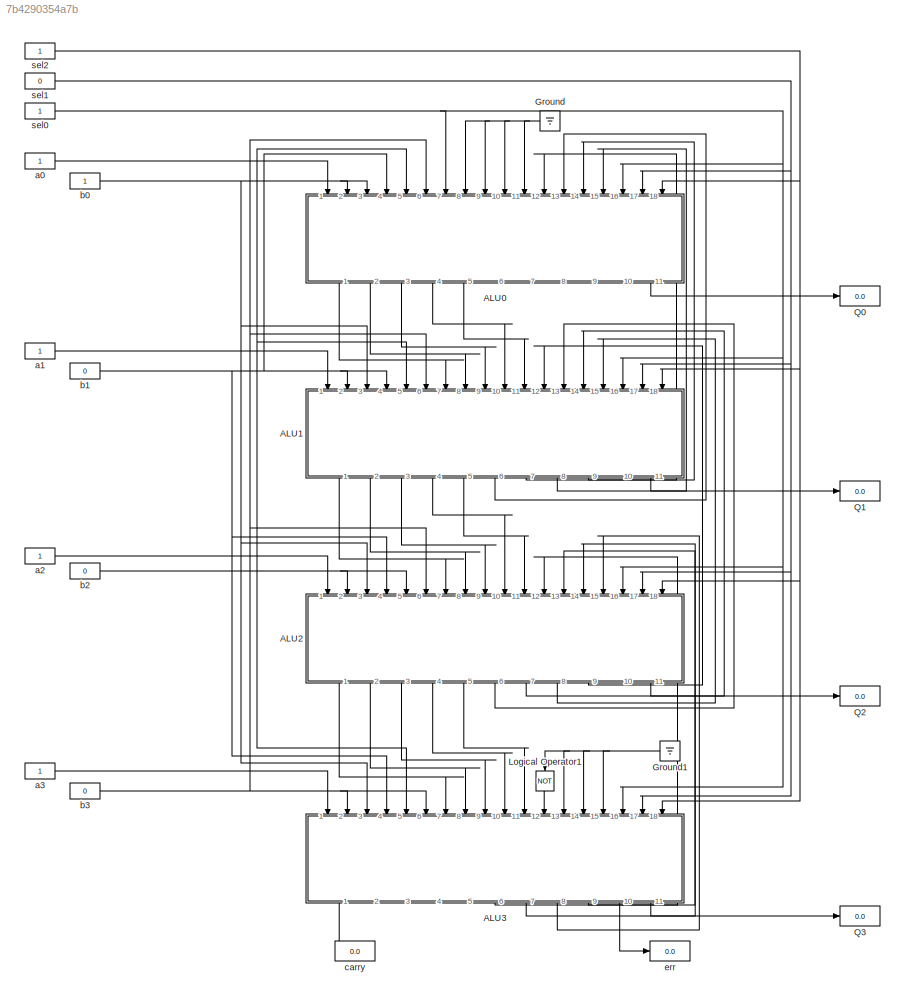
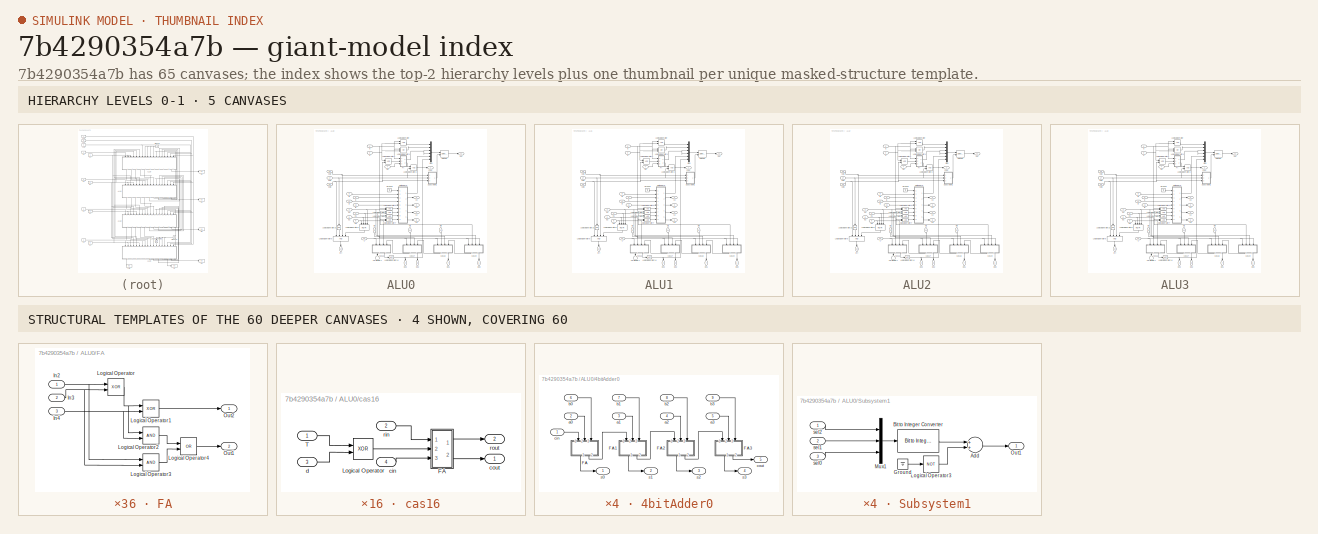
[diagram: thumbnail index - top-2 hierarchy levels (5 canvases) + 4 structural-template representatives of the remaining 60 canvases]
MODEL slx_7b4290354a7b
KIND model
CONFIG AbsTol = auto
CONFIG EnableMultiTasking = off
CONFIG FixedStep = auto
CONFIG MaxStep = auto
CONFIG MinStep = auto
CONFIG RelTol = 1e-3
CONFIG SampleTimeConstraint = Unconstrained
CONFIG Solver = VariableStepAuto
CONFIG SolverName = VariableStepAuto
CONFIG StartTime = 0.0
CONFIG StopTime = 10.0
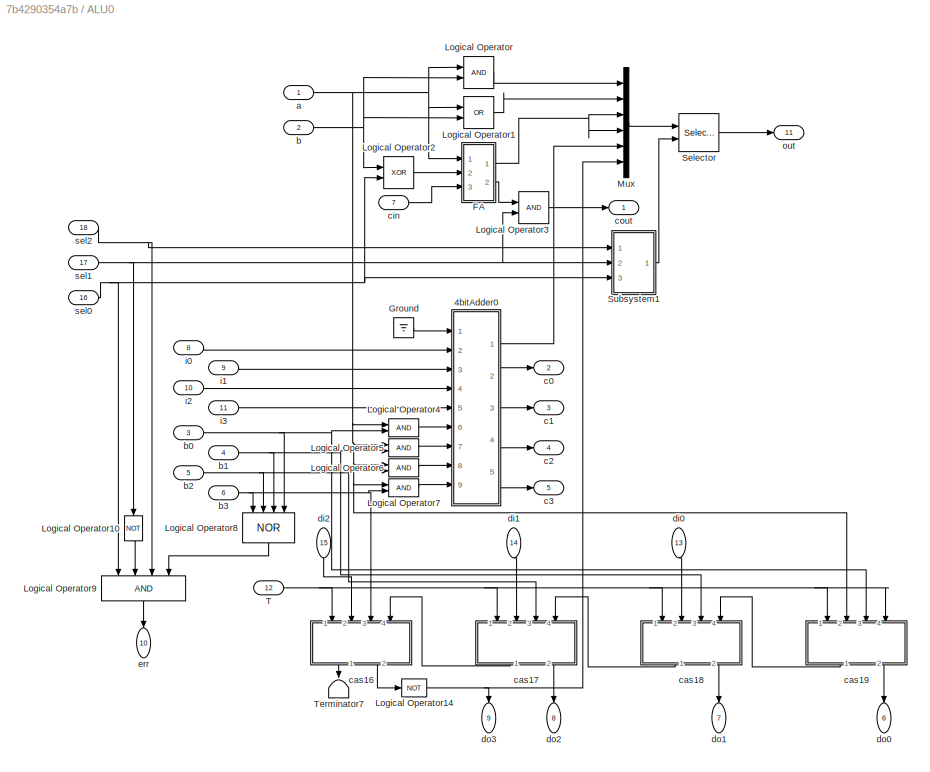
BLOCK [SubSystem] ALU0
  Ports = [18, 11]
  RequestExecContextInheritance = off
BLOCK [SubSystem] ALU0/4bitAdder0
  Ports = [9, 5]
  RequestExecContextInheritance = off
BLOCK [SubSystem] ALU0/4bitAdder0/FA
  Ports = [3, 2]
  RequestExecContextInheritance = off
BLOCK [Inport] ALU0/4bitAdder0/FA/In2
  IconDisplay = Port number
BLOCK [Inport] ALU0/4bitAdder0/FA/In3
  IconDisplay = Port number
  Port = 2
BLOCK [Inport] ALU0/4bitAdder0/FA/In4
  IconDisplay = Port number
  Port = 3
BLOCK [Logic] ALU0/4bitAdder0/FA/Logical Operator
  AllPortsSameDT = off
  IconShape = distinctive
  Operator = XOR
  OutDataTypeStr = boolean
  Ports = [2, 1]
BLOCK [Logic] ALU0/4bitAdder0/FA/Logical Operator1
  AllPortsSameDT = off
  IconShape = distinctive
  Operator = XOR
  OutDataTypeStr = boolean
  Ports = [2, 1]
BLOCK [Logic] ALU0/4bitAdder0/FA/Logical Operator2
  AllPortsSameDT = off
  IconShape = distinctive
  OutDataTypeStr = boolean
  Ports = [2, 1]
BLOCK [Logic] ALU0/4bitAdder0/FA/Logical Operator3
  AllPortsSameDT = off
  IconShape = distinctive
  OutDataTypeStr = boolean
  Ports = [2, 1]
BLOCK [Logic] ALU0/4bitAdder0/FA/Logical Operator4
  AllPortsSameDT = off
  IconShape = distinctive
  Operator = OR
  OutDataTypeStr = boolean
  Ports = [2, 1]
BLOCK [Outport] ALU0/4bitAdder0/FA/Out1
  IconDisplay = Port number
  Port = 2
BLOCK [Outport] ALU0/4bitAdder0/FA/Out2
  IconDisplay = Port number
BLOCK [SubSystem] ALU0/4bitAdder0/FA1
  Ports = [3, 2]
  RequestExecContextInheritance = off
BLOCK [Inport] ALU0/4bitAdder0/FA1/In2
  IconDisplay = Port number
BLOCK [Inport] ALU0/4bitAdder0/FA1/In3
  IconDisplay = Port number
  Port = 2
BLOCK [Inport] ALU0/4bitAdder0/FA1/In4
  IconDisplay = Port number
  Port = 3
BLOCK [Logic] ALU0/4bitAdder0/FA1/Logical Operator
  AllPortsSameDT = off
  IconShape = distinctive
  Operator = XOR
  OutDataTypeStr = boolean
  Ports = [2, 1]
BLOCK [Logic] ALU0/4bitAdder0/FA1/Logical Operator1
  AllPortsSameDT = off
  IconShape = distinctive
  Operator = XOR
  OutDataTypeStr = boolean
  Ports = [2, 1]
BLOCK [Logic] ALU0/4bitAdder0/FA1/Logical Operator2
  AllPortsSameDT = off
  IconShape = distinctive
  OutDataTypeStr = boolean
  Ports = [2, 1]
BLOCK [Logic] ALU0/4bitAdder0/FA1/Logical Operator3
  AllPortsSameDT = off
  IconShape = distinctive
  OutDataTypeStr = boolean
  Ports = [2, 1]
BLOCK [Logic] ALU0/4bitAdder0/FA1/Logical Operator4
  AllPortsSameDT = off
  IconShape = distinctive
  Operator = OR
  OutDataTypeStr = boolean
  Ports = [2, 1]
BLOCK [Outport] ALU0/4bitAdder0/FA1/Out1
  IconDisplay = Port number
  Port = 2
BLOCK [Outport] ALU0/4bitAdder0/FA1/Out2
  IconDisplay = Port number
BLOCK [SubSystem] ALU0/4bitAdder0/FA2
  Ports = [3, 2]
  RequestExecContextInheritance = off
BLOCK [Inport] ALU0/4bitAdder0/FA2/In2
  IconDisplay = Port number
BLOCK [Inport] ALU0/4bitAdder0/FA2/In3
  IconDisplay = Port number
  Port = 2
BLOCK [Inport] ALU0/4bitAdder0/FA2/In4
  IconDisplay = Port number
  Port = 3
BLOCK [Logic] ALU0/4bitAdder0/FA2/Logical Operator
  AllPortsSameDT = off
  IconShape = distinctive
  Operator = XOR
  OutDataTypeStr = boolean
  Ports = [2, 1]
BLOCK [Logic] ALU0/4bitAdder0/FA2/Logical Operator1
  AllPortsSameDT = off
  IconShape = distinctive
  Operator = XOR
  OutDataTypeStr = boolean
  Ports = [2, 1]
BLOCK [Logic] ALU0/4bitAdder0/FA2/Logical Operator2
  AllPortsSameDT = off
  IconShape = distinctive
  OutDataTypeStr = boolean
  Ports = [2, 1]
BLOCK [Logic] ALU0/4bitAdder0/FA2/Logical Operator3
  AllPortsSameDT = off
  IconShape = distinctive
  OutDataTypeStr = boolean
  Ports = [2, 1]
BLOCK [Logic] ALU0/4bitAdder0/FA2/Logical Operator4
  AllPortsSameDT = off
  IconShape = distinctive
  Operator = OR
  OutDataTypeStr = boolean
  Ports = [2, 1]
BLOCK [Outport] ALU0/4bitAdder0/FA2/Out1
  IconDisplay = Port number
  Port = 2
BLOCK [Outport] ALU0/4bitAdder0/FA2/Out2
  IconDisplay = Port number
BLOCK [SubSystem] ALU0/4bitAdder0/FA3
  Ports = [3, 2]
  RequestExecContextInheritance = off
BLOCK [Inport] ALU0/4bitAdder0/FA3/In2
  IconDisplay = Port number
BLOCK [Inport] ALU0/4bitAdder0/FA3/In3
  IconDisplay = Port number
  Port = 2
BLOCK [Inport] ALU0/4bitAdder0/FA3/In4
  IconDisplay = Port number
  Port = 3
BLOCK [Logic] ALU0/4bitAdder0/FA3/Logical Operator
  AllPortsSameDT = off
  IconShape = distinctive
  Operator = XOR
  OutDataTypeStr = boolean
  Ports = [2, 1]
BLOCK [Logic] ALU0/4bitAdder0/FA3/Logical Operator1
  AllPortsSameDT = off
  IconShape = distinctive
  Operator = XOR
  OutDataTypeStr = boolean
  Ports = [2, 1]
BLOCK [Logic] ALU0/4bitAdder0/FA3/Logical Operator2
  AllPortsSameDT = off
  IconShape = distinctive
  OutDataTypeStr = boolean
  Ports = [2, 1]
BLOCK [Logic] ALU0/4bitAdder0/FA3/Logical Operator3
  AllPortsSameDT = off
  IconShape = distinctive
  OutDataTypeStr = boolean
  Ports = [2, 1]
BLOCK [Logic] ALU0/4bitAdder0/FA3/Logical Operator4
  AllPortsSameDT = off
  IconShape = distinctive
  Operator = OR
  OutDataTypeStr = boolean
  Ports = [2, 1]
BLOCK [Outport] ALU0/4bitAdder0/FA3/Out1
  IconDisplay = Port number
  Port = 2
BLOCK [Outport] ALU0/4bitAdder0/FA3/Out2
  IconDisplay = Port number
BLOCK [Inport] ALU0/4bitAdder0/a0
  IconDisplay = Port number
  Port = 2
BLOCK [Inport] ALU0/4bitAdder0/a1
  IconDisplay = Port number
  Port = 3
BLOCK [Inport] ALU0/4bitAdder0/a2
  IconDisplay = Port number
  Port = 4
BLOCK [Inport] ALU0/4bitAdder0/a3
  IconDisplay = Port number
  Port = 5
BLOCK [Inport] ALU0/4bitAdder0/b0
  IconDisplay = Port number
  Port = 6
BLOCK [Inport] ALU0/4bitAdder0/b1
  IconDisplay = Port number
  Port = 7
BLOCK [Inport] ALU0/4bitAdder0/b2
  IconDisplay = Port number
  Port = 8
BLOCK [Inport] ALU0/4bitAdder0/b3
  IconDisplay = Port number
  Port = 9
BLOCK [Inport] ALU0/4bitAdder0/cin
  IconDisplay = Port number
BLOCK [Outport] ALU0/4bitAdder0/cout
  IconDisplay = Port number
  Port = 5
BLOCK [Outport] ALU0/4bitAdder0/s0
  IconDisplay = Port number
BLOCK [Outport] ALU0/4bitAdder0/s1
  IconDisplay = Port number
  Port = 2
BLOCK [Outport] ALU0/4bitAdder0/s2
  IconDisplay = Port number
  Port = 3
BLOCK [Outport] ALU0/4bitAdder0/s3
  IconDisplay = Port number
  Port = 4
BLOCK [SubSystem] ALU0/FA
  Ports = [3, 2]
  RequestExecContextInheritance = off
BLOCK [Inport] ALU0/FA/In2
  IconDisplay = Port number
BLOCK [Inport] ALU0/FA/In3
  IconDisplay = Port number
  Port = 2
BLOCK [Inport] ALU0/FA/In4
  IconDisplay = Port number
  Port = 3
BLOCK [Logic] ALU0/FA/Logical Operator
  AllPortsSameDT = off
  IconShape = distinctive
  Operator = XOR
  OutDataTypeStr = boolean
  Ports = [2, 1]
BLOCK [Logic] ALU0/FA/Logical Operator1
  AllPortsSameDT = off
  IconShape = distinctive
  Operator = XOR
  OutDataTypeStr = boolean
  Ports = [2, 1]
BLOCK [Logic] ALU0/FA/Logical Operator2
  AllPortsSameDT = off
  IconShape = distinctive
  OutDataTypeStr = boolean
  Ports = [2, 1]
BLOCK [Logic] ALU0/FA/Logical Operator3
  AllPortsSameDT = off
  IconShape = distinctive
  OutDataTypeStr = boolean
  Ports = [2, 1]
BLOCK [Logic] ALU0/FA/Logical Operator4
  AllPortsSameDT = off
  IconShape = distinctive
  Operator = OR
  OutDataTypeStr = boolean
  Ports = [2, 1]
BLOCK [Outport] ALU0/FA/Out1
  IconDisplay = Port number
  Port = 2
BLOCK [Outport] ALU0/FA/Out2
  IconDisplay = Port number
BLOCK [Ground] ALU0/Ground
BLOCK [Logic] ALU0/Logical Operator
  AllPortsSameDT = off
  IconShape = distinctive
  OutDataTypeStr = boolean
  Ports = [2, 1]
BLOCK [Logic] ALU0/Logical Operator1
  AllPortsSameDT = off
  IconShape = distinctive
  Operator = OR
  OutDataTypeStr = boolean
  Ports = [2, 1]
BLOCK [Logic] ALU0/Logical Operator10
  AllPortsSameDT = off
  IconShape = distinctive
  Operator = NOT
  OutDataTypeStr = boolean
  Ports = [1, 1]
BLOCK [Logic] ALU0/Logical Operator14
  AllPortsSameDT = off
  IconShape = distinctive
  Operator = NOT
  OutDataTypeStr = boolean
  Ports = [1, 1]
BLOCK [Logic] ALU0/Logical Operator2
  AllPortsSameDT = off
  IconShape = distinctive
  Operator = XOR
  OutDataTypeStr = boolean
  Ports = [2, 1]
BLOCK [Logic] ALU0/Logical Operator3
  AllPortsSameDT = off
  IconShape = distinctive
  OutDataTypeStr = boolean
  Ports = [2, 1]
BLOCK [Logic] ALU0/Logical Operator4
  AllPortsSameDT = off
  IconShape = distinctive
  OutDataTypeStr = boolean
  Ports = [2, 1]
BLOCK [Logic] ALU0/Logical Operator5
  AllPortsSameDT = off
  IconShape = distinctive
  OutDataTypeStr = boolean
  Ports = [2, 1]
BLOCK [Logic] ALU0/Logical Operator6
  AllPortsSameDT = off
  IconShape = distinctive
  OutDataTypeStr = boolean
  Ports = [2, 1]
BLOCK [Logic] ALU0/Logical Operator7
  AllPortsSameDT = off
  IconShape = distinctive
  OutDataTypeStr = boolean
  Ports = [2, 1]
BLOCK [Logic] ALU0/Logical Operator8
  AllPortsSameDT = off
  IconShape = distinctive
  Inputs = 4
  Operator = NOR
  OutDataTypeStr = boolean
  Ports = [4, 1]
BLOCK [Logic] ALU0/Logical Operator9
  AllPortsSameDT = off
  IconShape = distinctive
  Inputs = 4
  OutDataTypeStr = boolean
  Ports = [4, 1]
BLOCK [Mux] ALU0/Mux
  DisplayOption = bar
  Inputs = 6
  Ports = [6, 1]
BLOCK [Selector] ALU0/Selector
  IndexOptions = Starting index (port)
  Indices = [1 3]
  InputPortWidth = 6
  OutputSizes = 1
  Ports = [2, 1]
BLOCK [SubSystem] ALU0/Subsystem1
  Ports = [3, 1]
  RequestExecContextInheritance = off
BLOCK [Sum] ALU0/Subsystem1/Add
  InputSameDT = off
  OutDataTypeStr = Inherit: Inherit via internal rule
  Ports = [2, 1]
  SaturateOnIntegerOverflow = off
BLOCK [Reference] ALU0/Subsystem1/Bit to Integer Converter  REF=commutil2/Bit to Integer
Converter
  Ports = [1, 1]
  SourceBlock = commutil2/Bit to Integer\nConverter
  SourceProductBaseCode = CM
  SourceProductName = Communications System Toolbox
  SourceType = Bit to Integer Converter
BLOCK [Ground] ALU0/Subsystem1/Ground
BLOCK [Logic] ALU0/Subsystem1/Logical Operator3
  AllPortsSameDT = off
  IconShape = distinctive
  Operator = NOT
  OutDataTypeStr = boolean
  Ports = [1, 1]
BLOCK [Mux] ALU0/Subsystem1/Mux1
  DisplayOption = bar
  Inputs = 3
  Ports = [3, 1]
BLOCK [Outport] ALU0/Subsystem1/Out1
  IconDisplay = Port number
BLOCK [Inport] ALU0/Subsystem1/sel0
  IconDisplay = Port number
  Port = 3
BLOCK [Inport] ALU0/Subsystem1/sel1
  IconDisplay = Port number
  Port = 2
BLOCK [Inport] ALU0/Subsystem1/sel2
  IconDisplay = Port number
BLOCK [Inport] ALU0/T
  IconDisplay = Port number
  Port = 12
BLOCK [Terminator] ALU0/Terminator7
BLOCK [Inport] ALU0/a
  IconDisplay = Port number
BLOCK [Inport] ALU0/b
  IconDisplay = Port number
  Port = 2
BLOCK [Inport] ALU0/b0
  IconDisplay = Port number
  Port = 3
BLOCK [Inport] ALU0/b1
  IconDisplay = Port number
  Port = 4
BLOCK [Inport] ALU0/b2
  IconDisplay = Port number
  Port = 5
BLOCK [Inport] ALU0/b3
  IconDisplay = Port number
  Port = 6
BLOCK [Outport] ALU0/c0
  IconDisplay = Port number
  Port = 2
BLOCK [Outport] ALU0/c1
  IconDisplay = Port number
  Port = 3
BLOCK [Outport] ALU0/c2
  IconDisplay = Port number
  Port = 4
BLOCK [Outport] ALU0/c3
  IconDisplay = Port number
  Port = 5
BLOCK [SubSystem] ALU0/cas16
  Ports = [4, 2]
  RequestExecContextInheritance = off
BLOCK [SubSystem] ALU0/cas16/FA
  Ports = [3, 2]
  RequestExecContextInheritance = off
BLOCK [Inport] ALU0/cas16/FA/In2
  IconDisplay = Port number
BLOCK [Inport] ALU0/cas16/FA/In3
  IconDisplay = Port number
  Port = 2
BLOCK [Inport] ALU0/cas16/FA/In4
  IconDisplay = Port number
  Port = 3
BLOCK [Logic] ALU0/cas16/FA/Logical Operator
  AllPortsSameDT = off
  IconShape = distinctive
  Operator = XOR
  OutDataTypeStr = boolean
  Ports = [2, 1]
BLOCK [Logic] ALU0/cas16/FA/Logical Operator1
  AllPortsSameDT = off
  IconShape = distinctive
  Operator = XOR
  OutDataTypeStr = boolean
  Ports = [2, 1]
BLOCK [Logic] ALU0/cas16/FA/Logical Operator2
  AllPortsSameDT = off
  IconShape = distinctive
  OutDataTypeStr = boolean
  Ports = [2, 1]
BLOCK [Logic] ALU0/cas16/FA/Logical Operator3
  AllPortsSameDT = off
  IconShape = distinctive
  OutDataTypeStr = boolean
  Ports = [2, 1]
BLOCK [Logic] ALU0/cas16/FA/Logical Operator4
  AllPortsSameDT = off
  IconShape = distinctive
  Operator = OR
  OutDataTypeStr = boolean
  Ports = [2, 1]
BLOCK [Outport] ALU0/cas16/FA/Out1
  IconDisplay = Port number
  Port = 2
BLOCK [Outport] ALU0/cas16/FA/Out2
  IconDisplay = Port number
BLOCK [Logic] ALU0/cas16/Logical Operator
  AllPortsSameDT = off
  IconShape = distinctive
  Operator = XOR
  OutDataTypeStr = boolean
  Ports = [2, 1]
BLOCK [Inport] ALU0/cas16/T
  IconDisplay = Port number
BLOCK [Inport] ALU0/cas16/cin
  IconDisplay = Port number
  Port = 4
BLOCK [Outport] ALU0/cas16/cout
  IconDisplay = Port number
BLOCK [Inport] ALU0/cas16/d
  IconDisplay = Port number
  Port = 3
BLOCK [Inport] ALU0/cas16/rin
  IconDisplay = Port number
  Port = 2
BLOCK [Outport] ALU0/cas16/rout
  IconDisplay = Port number
  Port = 2
BLOCK [SubSystem] ALU0/cas17
  Ports = [4, 2]
  RequestExecContextInheritance = off
BLOCK [SubSystem] ALU0/cas17/FA
  Ports = [3, 2]
  RequestExecContextInheritance = off
BLOCK [Inport] ALU0/cas17/FA/In2
  IconDisplay = Port number
BLOCK [Inport] ALU0/cas17/FA/In3
  IconDisplay = Port number
  Port = 2
BLOCK [Inport] ALU0/cas17/FA/In4
  IconDisplay = Port number
  Port = 3
BLOCK [Logic] ALU0/cas17/FA/Logical Operator
  AllPortsSameDT = off
  IconShape = distinctive
  Operator = XOR
  OutDataTypeStr = boolean
  Ports = [2, 1]
BLOCK [Logic] ALU0/cas17/FA/Logical Operator1
  AllPortsSameDT = off
  IconShape = distinctive
  Operator = XOR
  OutDataTypeStr = boolean
  Ports = [2, 1]
BLOCK [Logic] ALU0/cas17/FA/Logical Operator2
  AllPortsSameDT = off
  IconShape = distinctive
  OutDataTypeStr = boolean
  Ports = [2, 1]
BLOCK [Logic] ALU0/cas17/FA/Logical Operator3
  AllPortsSameDT = off
  IconShape = distinctive
  OutDataTypeStr = boolean
  Ports = [2, 1]
BLOCK [Logic] ALU0/cas17/FA/Logical Operator4
  AllPortsSameDT = off
  IconShape = distinctive
  Operator = OR
  OutDataTypeStr = boolean
  Ports = [2, 1]
BLOCK [Outport] ALU0/cas17/FA/Out1
  IconDisplay = Port number
  Port = 2
BLOCK [Outport] ALU0/cas17/FA/Out2
  IconDisplay = Port number
BLOCK [Logic] ALU0/cas17/Logical Operator
  AllPortsSameDT = off
  IconShape = distinctive
  Operator = XOR
  OutDataTypeStr = boolean
  Ports = [2, 1]
BLOCK [Inport] ALU0/cas17/T
  IconDisplay = Port number
BLOCK [Inport] ALU0/cas17/cin
  IconDisplay = Port number
  Port = 4
BLOCK [Outport] ALU0/cas17/cout
  IconDisplay = Port number
BLOCK [Inport] ALU0/cas17/d
  IconDisplay = Port number
  Port = 3
BLOCK [Inport] ALU0/cas17/rin
  IconDisplay = Port number
  Port = 2
BLOCK [Outport] ALU0/cas17/rout
  IconDisplay = Port number
  Port = 2
BLOCK [SubSystem] ALU0/cas18
  Ports = [4, 2]
  RequestExecContextInheritance = off
BLOCK [SubSystem] ALU0/cas18/FA
  Ports = [3, 2]
  RequestExecContextInheritance = off
BLOCK [Inport] ALU0/cas18/FA/In2
  IconDisplay = Port number
BLOCK [Inport] ALU0/cas18/FA/In3
  IconDisplay = Port number
  Port = 2
BLOCK [Inport] ALU0/cas18/FA/In4
  IconDisplay = Port number
  Port = 3
BLOCK [Logic] ALU0/cas18/FA/Logical Operator
  AllPortsSameDT = off
  IconShape = distinctive
  Operator = XOR
  OutDataTypeStr = boolean
  Ports = [2, 1]
BLOCK [Logic] ALU0/cas18/FA/Logical Operator1
  AllPortsSameDT = off
  IconShape = distinctive
  Operator = XOR
  OutDataTypeStr = boolean
  Ports = [2, 1]
BLOCK [Logic] ALU0/cas18/FA/Logical Operator2
  AllPortsSameDT = off
  IconShape = distinctive
  OutDataTypeStr = boolean
  Ports = [2, 1]
BLOCK [Logic] ALU0/cas18/FA/Logical Operator3
  AllPortsSameDT = off
  IconShape = distinctive
  OutDataTypeStr = boolean
  Ports = [2, 1]
BLOCK [Logic] ALU0/cas18/FA/Logical Operator4
  AllPortsSameDT = off
  IconShape = distinctive
  Operator = OR
  OutDataTypeStr = boolean
  Ports = [2, 1]
BLOCK [Outport] ALU0/cas18/FA/Out1
  IconDisplay = Port number
  Port = 2
BLOCK [Outport] ALU0/cas18/FA/Out2
  IconDisplay = Port number
BLOCK [Logic] ALU0/cas18/Logical Operator
  AllPortsSameDT = off
  IconShape = distinctive
  Operator = XOR
  OutDataTypeStr = boolean
  Ports = [2, 1]
BLOCK [Inport] ALU0/cas18/T
  IconDisplay = Port number
BLOCK [Inport] ALU0/cas18/cin
  IconDisplay = Port number
  Port = 4
BLOCK [Outport] ALU0/cas18/cout
  IconDisplay = Port number
BLOCK [Inport] ALU0/cas18/d
  IconDisplay = Port number
  Port = 3
BLOCK [Inport] ALU0/cas18/rin
  IconDisplay = Port number
  Port = 2
BLOCK [Outport] ALU0/cas18/rout
  IconDisplay = Port number
  Port = 2
BLOCK [SubSystem] ALU0/cas19
  Ports = [4, 2]
  RequestExecContextInheritance = off
BLOCK [SubSystem] ALU0/cas19/FA
  Ports = [3, 2]
  RequestExecContextInheritance = off
BLOCK [Inport] ALU0/cas19/FA/In2
  IconDisplay = Port number
BLOCK [Inport] ALU0/cas19/FA/In3
  IconDisplay = Port number
  Port = 2
BLOCK [Inport] ALU0/cas19/FA/In4
  IconDisplay = Port number
  Port = 3
BLOCK [Logic] ALU0/cas19/FA/Logical Operator
  AllPortsSameDT = off
  IconShape = distinctive
  Operator = XOR
  OutDataTypeStr = boolean
  Ports = [2, 1]
BLOCK [Logic] ALU0/cas19/FA/Logical Operator1
  AllPortsSameDT = off
  IconShape = distinctive
  Operator = XOR
  OutDataTypeStr = boolean
  Ports = [2, 1]
BLOCK [Logic] ALU0/cas19/FA/Logical Operator2
  AllPortsSameDT = off
  IconShape = distinctive
  OutDataTypeStr = boolean
  Ports = [2, 1]
BLOCK [Logic] ALU0/cas19/FA/Logical Operator3
  AllPortsSameDT = off
  IconShape = distinctive
  OutDataTypeStr = boolean
  Ports = [2, 1]
BLOCK [Logic] ALU0/cas19/FA/Logical Operator4
  AllPortsSameDT = off
  IconShape = distinctive
  Operator = OR
  OutDataTypeStr = boolean
  Ports = [2, 1]
BLOCK [Outport] ALU0/cas19/FA/Out1
  IconDisplay = Port number
  Port = 2
BLOCK [Outport] ALU0/cas19/FA/Out2
  IconDisplay = Port number
BLOCK [Logic] ALU0/cas19/Logical Operator
  AllPortsSameDT = off
  IconShape = distinctive
  Operator = XOR
  OutDataTypeStr = boolean
  Ports = [2, 1]
BLOCK [Inport] ALU0/cas19/T
  IconDisplay = Port number
BLOCK [Inport] ALU0/cas19/cin
  IconDisplay = Port number
  Port = 4
BLOCK [Outport] ALU0/cas19/cout
  IconDisplay = Port number
BLOCK [Inport] ALU0/cas19/d
  IconDisplay = Port number
  Port = 3
BLOCK [Inport] ALU0/cas19/rin
  IconDisplay = Port number
  Port = 2
BLOCK [Outport] ALU0/cas19/rout
  IconDisplay = Port number
  Port = 2
BLOCK [Inport] ALU0/cin
  IconDisplay = Port number
  Port = 7
BLOCK [Outport] ALU0/cout
  IconDisplay = Port number
BLOCK [Inport] ALU0/di0
  IconDisplay = Port number
  Port = 13
BLOCK [Inport] ALU0/di1
  IconDisplay = Port number
  Port = 14
BLOCK [Inport] ALU0/di2
  IconDisplay = Port number
  Port = 15
BLOCK [Outport] ALU0/do0
  IconDisplay = Port number
  Port = 6
BLOCK [Outport] ALU0/do1
  IconDisplay = Port number
  Port = 7
BLOCK [Outport] ALU0/do2
  IconDisplay = Port number
  Port = 8
BLOCK [Outport] ALU0/do3
  IconDisplay = Port number
  Port = 9
BLOCK [Outport] ALU0/err
  IconDisplay = Port number
  Port = 10
BLOCK [Inport] ALU0/i0
  IconDisplay = Port number
  Port = 8
BLOCK [Inport] ALU0/i1
  IconDisplay = Port number
  Port = 9
BLOCK [Inport] ALU0/i2
  IconDisplay = Port number
  Port = 10
BLOCK [Inport] ALU0/i3
  IconDisplay = Port number
  Port = 11
BLOCK [Outport] ALU0/out
  IconDisplay = Port number
  Port = 11
BLOCK [Inport] ALU0/sel0
  IconDisplay = Port number
  Port = 16
BLOCK [Inport] ALU0/sel1
  IconDisplay = Port number
  Port = 17
BLOCK [Inport] ALU0/sel2
  IconDisplay = Port number
  Port = 18
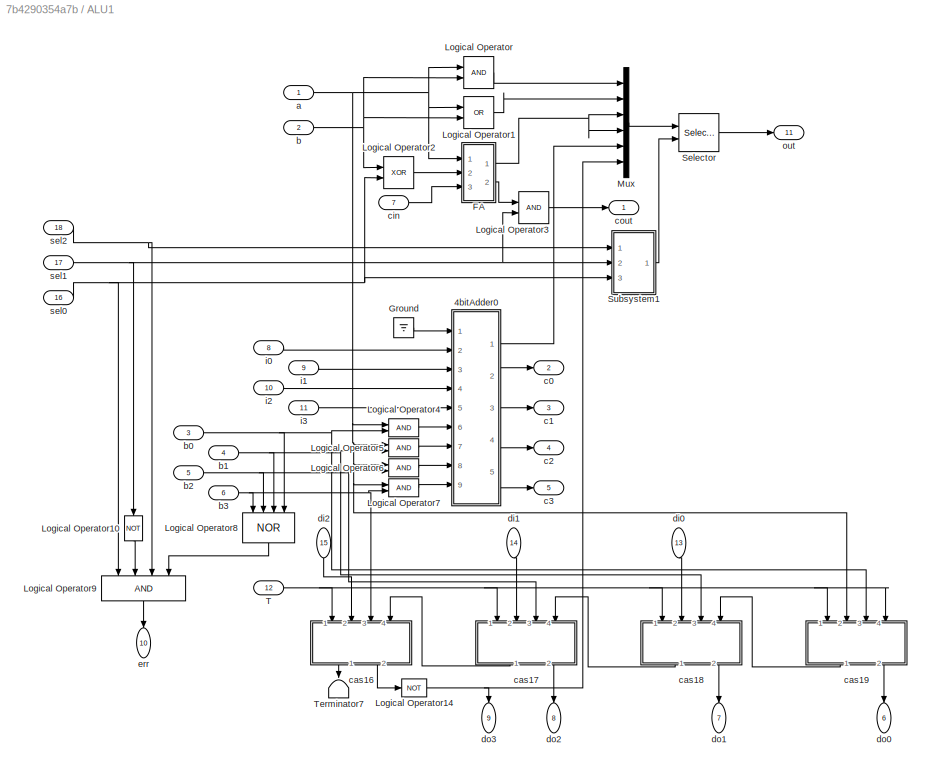
BLOCK [SubSystem] ALU1
  Ports = [18, 11]
  RequestExecContextInheritance = off
BLOCK [SubSystem] ALU1/4bitAdder0
  Ports = [9, 5]
  RequestExecContextInheritance = off
BLOCK [SubSystem] ALU1/4bitAdder0/FA
  Ports = [3, 2]
  RequestExecContextInheritance = off
BLOCK [Inport] ALU1/4bitAdder0/FA/In2
  IconDisplay = Port number
BLOCK [Inport] ALU1/4bitAdder0/FA/In3
  IconDisplay = Port number
  Port = 2
BLOCK [Inport] ALU1/4bitAdder0/FA/In4
  IconDisplay = Port number
  Port = 3
BLOCK [Logic] ALU1/4bitAdder0/FA/Logical Operator
  AllPortsSameDT = off
  IconShape = distinctive
  Operator = XOR
  OutDataTypeStr = boolean
  Ports = [2, 1]
BLOCK [Logic] ALU1/4bitAdder0/FA/Logical Operator1
  AllPortsSameDT = off
  IconShape = distinctive
  Operator = XOR
  OutDataTypeStr = boolean
  Ports = [2, 1]
BLOCK [Logic] ALU1/4bitAdder0/FA/Logical Operator2
  AllPortsSameDT = off
  IconShape = distinctive
  OutDataTypeStr = boolean
  Ports = [2, 1]
BLOCK [Logic] ALU1/4bitAdder0/FA/Logical Operator3
  AllPortsSameDT = off
  IconShape = distinctive
  OutDataTypeStr = boolean
  Ports = [2, 1]
BLOCK [Logic] ALU1/4bitAdder0/FA/Logical Operator4
  AllPortsSameDT = off
  IconShape = distinctive
  Operator = OR
  OutDataTypeStr = boolean
  Ports = [2, 1]
BLOCK [Outport] ALU1/4bitAdder0/FA/Out1
  IconDisplay = Port number
  Port = 2
BLOCK [Outport] ALU1/4bitAdder0/FA/Out2
  IconDisplay = Port number
BLOCK [SubSystem] ALU1/4bitAdder0/FA1
  Ports = [3, 2]
  RequestExecContextInheritance = off
BLOCK [Inport] ALU1/4bitAdder0/FA1/In2
  IconDisplay = Port number
BLOCK [Inport] ALU1/4bitAdder0/FA1/In3
  IconDisplay = Port number
  Port = 2
BLOCK [Inport] ALU1/4bitAdder0/FA1/In4
  IconDisplay = Port number
  Port = 3
BLOCK [Logic] ALU1/4bitAdder0/FA1/Logical Operator
  AllPortsSameDT = off
  IconShape = distinctive
  Operator = XOR
  OutDataTypeStr = boolean
  Ports = [2, 1]
BLOCK [Logic] ALU1/4bitAdder0/FA1/Logical Operator1
  AllPortsSameDT = off
  IconShape = distinctive
  Operator = XOR
  OutDataTypeStr = boolean
  Ports = [2, 1]
BLOCK [Logic] ALU1/4bitAdder0/FA1/Logical Operator2
  AllPortsSameDT = off
  IconShape = distinctive
  OutDataTypeStr = boolean
  Ports = [2, 1]
BLOCK [Logic] ALU1/4bitAdder0/FA1/Logical Operator3
  AllPortsSameDT = off
  IconShape = distinctive
  OutDataTypeStr = boolean
  Ports = [2, 1]
BLOCK [Logic] ALU1/4bitAdder0/FA1/Logical Operator4
  AllPortsSameDT = off
  IconShape = distinctive
  Operator = OR
  OutDataTypeStr = boolean
  Ports = [2, 1]
BLOCK [Outport] ALU1/4bitAdder0/FA1/Out1
  IconDisplay = Port number
  Port = 2
BLOCK [Outport] ALU1/4bitAdder0/FA1/Out2
  IconDisplay = Port number
BLOCK [SubSystem] ALU1/4bitAdder0/FA2
  Ports = [3, 2]
  RequestExecContextInheritance = off
BLOCK [Inport] ALU1/4bitAdder0/FA2/In2
  IconDisplay = Port number
BLOCK [Inport] ALU1/4bitAdder0/FA2/In3
  IconDisplay = Port number
  Port = 2
BLOCK [Inport] ALU1/4bitAdder0/FA2/In4
  IconDisplay = Port number
  Port = 3
BLOCK [Logic] ALU1/4bitAdder0/FA2/Logical Operator
  AllPortsSameDT = off
  IconShape = distinctive
  Operator = XOR
  OutDataTypeStr = boolean
  Ports = [2, 1]
BLOCK [Logic] ALU1/4bitAdder0/FA2/Logical Operator1
  AllPortsSameDT = off
  IconShape = distinctive
  Operator = XOR
  OutDataTypeStr = boolean
  Ports = [2, 1]
BLOCK [Logic] ALU1/4bitAdder0/FA2/Logical Operator2
  AllPortsSameDT = off
  IconShape = distinctive
  OutDataTypeStr = boolean
  Ports = [2, 1]
BLOCK [Logic] ALU1/4bitAdder0/FA2/Logical Operator3
  AllPortsSameDT = off
  IconShape = distinctive
  OutDataTypeStr = boolean
  Ports = [2, 1]
BLOCK [Logic] ALU1/4bitAdder0/FA2/Logical Operator4
  AllPortsSameDT = off
  IconShape = distinctive
  Operator = OR
  OutDataTypeStr = boolean
  Ports = [2, 1]
BLOCK [Outport] ALU1/4bitAdder0/FA2/Out1
  IconDisplay = Port number
  Port = 2
BLOCK [Outport] ALU1/4bitAdder0/FA2/Out2
  IconDisplay = Port number
BLOCK [SubSystem] ALU1/4bitAdder0/FA3
  Ports = [3, 2]
  RequestExecContextInheritance = off
BLOCK [Inport] ALU1/4bitAdder0/FA3/In2
  IconDisplay = Port number
BLOCK [Inport] ALU1/4bitAdder0/FA3/In3
  IconDisplay = Port number
  Port = 2
BLOCK [Inport] ALU1/4bitAdder0/FA3/In4
  IconDisplay = Port number
  Port = 3
BLOCK [Logic] ALU1/4bitAdder0/FA3/Logical Operator
  AllPortsSameDT = off
  IconShape = distinctive
  Operator = XOR
  OutDataTypeStr = boolean
  Ports = [2, 1]
BLOCK [Logic] ALU1/4bitAdder0/FA3/Logical Operator1
  AllPortsSameDT = off
  IconShape = distinctive
  Operator = XOR
  OutDataTypeStr = boolean
  Ports = [2, 1]
BLOCK [Logic] ALU1/4bitAdder0/FA3/Logical Operator2
  AllPortsSameDT = off
  IconShape = distinctive
  OutDataTypeStr = boolean
  Ports = [2, 1]
BLOCK [Logic] ALU1/4bitAdder0/FA3/Logical Operator3
  AllPortsSameDT = off
  IconShape = distinctive
  OutDataTypeStr = boolean
  Ports = [2, 1]
BLOCK [Logic] ALU1/4bitAdder0/FA3/Logical Operator4
  AllPortsSameDT = off
  IconShape = distinctive
  Operator = OR
  OutDataTypeStr = boolean
  Ports = [2, 1]
BLOCK [Outport] ALU1/4bitAdder0/FA3/Out1
  IconDisplay = Port number
  Port = 2
BLOCK [Outport] ALU1/4bitAdder0/FA3/Out2
  IconDisplay = Port number
BLOCK [Inport] ALU1/4bitAdder0/a0
  IconDisplay = Port number
  Port = 2
BLOCK [Inport] ALU1/4bitAdder0/a1
  IconDisplay = Port number
  Port = 3
BLOCK [Inport] ALU1/4bitAdder0/a2
  IconDisplay = Port number
  Port = 4
BLOCK [Inport] ALU1/4bitAdder0/a3
  IconDisplay = Port number
  Port = 5
BLOCK [Inport] ALU1/4bitAdder0/b0
  IconDisplay = Port number
  Port = 6
BLOCK [Inport] ALU1/4bitAdder0/b1
  IconDisplay = Port number
  Port = 7
BLOCK [Inport] ALU1/4bitAdder0/b2
  IconDisplay = Port number
  Port = 8
BLOCK [Inport] ALU1/4bitAdder0/b3
  IconDisplay = Port number
  Port = 9
BLOCK [Inport] ALU1/4bitAdder0/cin
  IconDisplay = Port number
BLOCK [Outport] ALU1/4bitAdder0/cout
  IconDisplay = Port number
  Port = 5
BLOCK [Outport] ALU1/4bitAdder0/s0
  IconDisplay = Port number
BLOCK [Outport] ALU1/4bitAdder0/s1
  IconDisplay = Port number
  Port = 2
BLOCK [Outport] ALU1/4bitAdder0/s2
  IconDisplay = Port number
  Port = 3
BLOCK [Outport] ALU1/4bitAdder0/s3
  IconDisplay = Port number
  Port = 4
BLOCK [SubSystem] ALU1/FA
  Ports = [3, 2]
  RequestExecContextInheritance = off
BLOCK [Inport] ALU1/FA/In2
  IconDisplay = Port number
BLOCK [Inport] ALU1/FA/In3
  IconDisplay = Port number
  Port = 2
BLOCK [Inport] ALU1/FA/In4
  IconDisplay = Port number
  Port = 3
BLOCK [Logic] ALU1/FA/Logical Operator
  AllPortsSameDT = off
  IconShape = distinctive
  Operator = XOR
  OutDataTypeStr = boolean
  Ports = [2, 1]
BLOCK [Logic] ALU1/FA/Logical Operator1
  AllPortsSameDT = off
  IconShape = distinctive
  Operator = XOR
  OutDataTypeStr = boolean
  Ports = [2, 1]
BLOCK [Logic] ALU1/FA/Logical Operator2
  AllPortsSameDT = off
  IconShape = distinctive
  OutDataTypeStr = boolean
  Ports = [2, 1]
BLOCK [Logic] ALU1/FA/Logical Operator3
  AllPortsSameDT = off
  IconShape = distinctive
  OutDataTypeStr = boolean
  Ports = [2, 1]
BLOCK [Logic] ALU1/FA/Logical Operator4
  AllPortsSameDT = off
  IconShape = distinctive
  Operator = OR
  OutDataTypeStr = boolean
  Ports = [2, 1]
BLOCK [Outport] ALU1/FA/Out1
  IconDisplay = Port number
  Port = 2
BLOCK [Outport] ALU1/FA/Out2
  IconDisplay = Port number
BLOCK [Ground] ALU1/Ground
BLOCK [Logic] ALU1/Logical Operator
  AllPortsSameDT = off
  IconShape = distinctive
  OutDataTypeStr = boolean
  Ports = [2, 1]
BLOCK [Logic] ALU1/Logical Operator1
  AllPortsSameDT = off
  IconShape = distinctive
  Operator = OR
  OutDataTypeStr = boolean
  Ports = [2, 1]
BLOCK [Logic] ALU1/Logical Operator10
  AllPortsSameDT = off
  IconShape = distinctive
  Operator = NOT
  OutDataTypeStr = boolean
  Ports = [1, 1]
BLOCK [Logic] ALU1/Logical Operator14
  AllPortsSameDT = off
  IconShape = distinctive
  Operator = NOT
  OutDataTypeStr = boolean
  Ports = [1, 1]
BLOCK [Logic] ALU1/Logical Operator2
  AllPortsSameDT = off
  IconShape = distinctive
  Operator = XOR
  OutDataTypeStr = boolean
  Ports = [2, 1]
BLOCK [Logic] ALU1/Logical Operator3
  AllPortsSameDT = off
  IconShape = distinctive
  OutDataTypeStr = boolean
  Ports = [2, 1]
BLOCK [Logic] ALU1/Logical Operator4
  AllPortsSameDT = off
  IconShape = distinctive
  OutDataTypeStr = boolean
  Ports = [2, 1]
BLOCK [Logic] ALU1/Logical Operator5
  AllPortsSameDT = off
  IconShape = distinctive
  OutDataTypeStr = boolean
  Ports = [2, 1]
BLOCK [Logic] ALU1/Logical Operator6
  AllPortsSameDT = off
  IconShape = distinctive
  OutDataTypeStr = boolean
  Ports = [2, 1]
BLOCK [Logic] ALU1/Logical Operator7
  AllPortsSameDT = off
  IconShape = distinctive
  OutDataTypeStr = boolean
  Ports = [2, 1]
BLOCK [Logic] ALU1/Logical Operator8
  AllPortsSameDT = off
  IconShape = distinctive
  Inputs = 4
  Operator = NOR
  OutDataTypeStr = boolean
  Ports = [4, 1]
BLOCK [Logic] ALU1/Logical Operator9
  AllPortsSameDT = off
  IconShape = distinctive
  Inputs = 4
  OutDataTypeStr = boolean
  Ports = [4, 1]
BLOCK [Mux] ALU1/Mux
  DisplayOption = bar
  Inputs = 6
  Ports = [6, 1]
BLOCK [Selector] ALU1/Selector
  IndexOptions = Starting index (port)
  Indices = [1 3]
  InputPortWidth = 6
  OutputSizes = 1
  Ports = [2, 1]
BLOCK [SubSystem] ALU1/Subsystem1
  Ports = [3, 1]
  RequestExecContextInheritance = off
BLOCK [Sum] ALU1/Subsystem1/Add
  InputSameDT = off
  OutDataTypeStr = Inherit: Inherit via internal rule
  Ports = [2, 1]
  SaturateOnIntegerOverflow = off
BLOCK [Reference] ALU1/Subsystem1/Bit to Integer Converter  REF=commutil2/Bit to Integer
Converter
  Ports = [1, 1]
  SourceBlock = commutil2/Bit to Integer\nConverter
  SourceProductBaseCode = CM
  SourceProductName = Communications System Toolbox
  SourceType = Bit to Integer Converter
BLOCK [Ground] ALU1/Subsystem1/Ground
BLOCK [Logic] ALU1/Subsystem1/Logical Operator3
  AllPortsSameDT = off
  IconShape = distinctive
  Operator = NOT
  OutDataTypeStr = boolean
  Ports = [1, 1]
BLOCK [Mux] ALU1/Subsystem1/Mux1
  DisplayOption = bar
  Inputs = 3
  Ports = [3, 1]
BLOCK [Outport] ALU1/Subsystem1/Out1
  IconDisplay = Port number
BLOCK [Inport] ALU1/Subsystem1/sel0
  IconDisplay = Port number
  Port = 3
BLOCK [Inport] ALU1/Subsystem1/sel1
  IconDisplay = Port number
  Port = 2
BLOCK [Inport] ALU1/Subsystem1/sel2
  IconDisplay = Port number
BLOCK [Inport] ALU1/T
  IconDisplay = Port number
  Port = 12
BLOCK [Terminator] ALU1/Terminator7
BLOCK [Inport] ALU1/a
  IconDisplay = Port number
BLOCK [Inport] ALU1/b
  IconDisplay = Port number
  Port = 2
BLOCK [Inport] ALU1/b0
  IconDisplay = Port number
  Port = 3
BLOCK [Inport] ALU1/b1
  IconDisplay = Port number
  Port = 4
BLOCK [Inport] ALU1/b2
  IconDisplay = Port number
  Port = 5
BLOCK [Inport] ALU1/b3
  IconDisplay = Port number
  Port = 6
BLOCK [Outport] ALU1/c0
  IconDisplay = Port number
  Port = 2
BLOCK [Outport] ALU1/c1
  IconDisplay = Port number
  Port = 3
BLOCK [Outport] ALU1/c2
  IconDisplay = Port number
  Port = 4
BLOCK [Outport] ALU1/c3
  IconDisplay = Port number
  Port = 5
BLOCK [SubSystem] ALU1/cas16
  Ports = [4, 2]
  RequestExecContextInheritance = off
BLOCK [SubSystem] ALU1/cas16/FA
  Ports = [3, 2]
  RequestExecContextInheritance = off
BLOCK [Inport] ALU1/cas16/FA/In2
  IconDisplay = Port number
BLOCK [Inport] ALU1/cas16/FA/In3
  IconDisplay = Port number
  Port = 2
BLOCK [Inport] ALU1/cas16/FA/In4
  IconDisplay = Port number
  Port = 3
BLOCK [Logic] ALU1/cas16/FA/Logical Operator
  AllPortsSameDT = off
  IconShape = distinctive
  Operator = XOR
  OutDataTypeStr = boolean
  Ports = [2, 1]
BLOCK [Logic] ALU1/cas16/FA/Logical Operator1
  AllPortsSameDT = off
  IconShape = distinctive
  Operator = XOR
  OutDataTypeStr = boolean
  Ports = [2, 1]
BLOCK [Logic] ALU1/cas16/FA/Logical Operator2
  AllPortsSameDT = off
  IconShape = distinctive
  OutDataTypeStr = boolean
  Ports = [2, 1]
BLOCK [Logic] ALU1/cas16/FA/Logical Operator3
  AllPortsSameDT = off
  IconShape = distinctive
  OutDataTypeStr = boolean
  Ports = [2, 1]
BLOCK [Logic] ALU1/cas16/FA/Logical Operator4
  AllPortsSameDT = off
  IconShape = distinctive
  Operator = OR
  OutDataTypeStr = boolean
  Ports = [2, 1]
BLOCK [Outport] ALU1/cas16/FA/Out1
  IconDisplay = Port number
  Port = 2
BLOCK [Outport] ALU1/cas16/FA/Out2
  IconDisplay = Port number
BLOCK [Logic] ALU1/cas16/Logical Operator
  AllPortsSameDT = off
  IconShape = distinctive
  Operator = XOR
  OutDataTypeStr = boolean
  Ports = [2, 1]
BLOCK [Inport] ALU1/cas16/T
  IconDisplay = Port number
BLOCK [Inport] ALU1/cas16/cin
  IconDisplay = Port number
  Port = 4
BLOCK [Outport] ALU1/cas16/cout
  IconDisplay = Port number
BLOCK [Inport] ALU1/cas16/d
  IconDisplay = Port number
  Port = 3
BLOCK [Inport] ALU1/cas16/rin
  IconDisplay = Port number
  Port = 2
BLOCK [Outport] ALU1/cas16/rout
  IconDisplay = Port number
  Port = 2
BLOCK [SubSystem] ALU1/cas17
  Ports = [4, 2]
  RequestExecContextInheritance = off
BLOCK [SubSystem] ALU1/cas17/FA
  Ports = [3, 2]
  RequestExecContextInheritance = off
BLOCK [Inport] ALU1/cas17/FA/In2
  IconDisplay = Port number
BLOCK [Inport] ALU1/cas17/FA/In3
  IconDisplay = Port number
  Port = 2
BLOCK [Inport] ALU1/cas17/FA/In4
  IconDisplay = Port number
  Port = 3
BLOCK [Logic] ALU1/cas17/FA/Logical Operator
  AllPortsSameDT = off
  IconShape = distinctive
  Operator = XOR
  OutDataTypeStr = boolean
  Ports = [2, 1]
BLOCK [Logic] ALU1/cas17/FA/Logical Operator1
  AllPortsSameDT = off
  IconShape = distinctive
  Operator = XOR
  OutDataTypeStr = boolean
  Ports = [2, 1]
BLOCK [Logic] ALU1/cas17/FA/Logical Operator2
  AllPortsSameDT = off
  IconShape = distinctive
  OutDataTypeStr = boolean
  Ports = [2, 1]
BLOCK [Logic] ALU1/cas17/FA/Logical Operator3
  AllPortsSameDT = off
  IconShape = distinctive
  OutDataTypeStr = boolean
  Ports = [2, 1]
BLOCK [Logic] ALU1/cas17/FA/Logical Operator4
  AllPortsSameDT = off
  IconShape = distinctive
  Operator = OR
  OutDataTypeStr = boolean
  Ports = [2, 1]
BLOCK [Outport] ALU1/cas17/FA/Out1
  IconDisplay = Port number
  Port = 2
BLOCK [Outport] ALU1/cas17/FA/Out2
  IconDisplay = Port number
BLOCK [Logic] ALU1/cas17/Logical Operator
  AllPortsSameDT = off
  IconShape = distinctive
  Operator = XOR
  OutDataTypeStr = boolean
  Ports = [2, 1]
BLOCK [Inport] ALU1/cas17/T
  IconDisplay = Port number
BLOCK [Inport] ALU1/cas17/cin
  IconDisplay = Port number
  Port = 4
BLOCK [Outport] ALU1/cas17/cout
  IconDisplay = Port number
BLOCK [Inport] ALU1/cas17/d
  IconDisplay = Port number
  Port = 3
BLOCK [Inport] ALU1/cas17/rin
  IconDisplay = Port number
  Port = 2
BLOCK [Outport] ALU1/cas17/rout
  IconDisplay = Port number
  Port = 2
BLOCK [SubSystem] ALU1/cas18
  Ports = [4, 2]
  RequestExecContextInheritance = off
BLOCK [SubSystem] ALU1/cas18/FA
  Ports = [3, 2]
  RequestExecContextInheritance = off
BLOCK [Inport] ALU1/cas18/FA/In2
  IconDisplay = Port number
BLOCK [Inport] ALU1/cas18/FA/In3
  IconDisplay = Port number
  Port = 2
BLOCK [Inport] ALU1/cas18/FA/In4
  IconDisplay = Port number
  Port = 3
BLOCK [Logic] ALU1/cas18/FA/Logical Operator
  AllPortsSameDT = off
  IconShape = distinctive
  Operator = XOR
  OutDataTypeStr = boolean
  Ports = [2, 1]
BLOCK [Logic] ALU1/cas18/FA/Logical Operator1
  AllPortsSameDT = off
  IconShape = distinctive
  Operator = XOR
  OutDataTypeStr = boolean
  Ports = [2, 1]
BLOCK [Logic] ALU1/cas18/FA/Logical Operator2
  AllPortsSameDT = off
  IconShape = distinctive
  OutDataTypeStr = boolean
  Ports = [2, 1]
BLOCK [Logic] ALU1/cas18/FA/Logical Operator3
  AllPortsSameDT = off
  IconShape = distinctive
  OutDataTypeStr = boolean
  Ports = [2, 1]
BLOCK [Logic] ALU1/cas18/FA/Logical Operator4
  AllPortsSameDT = off
  IconShape = distinctive
  Operator = OR
  OutDataTypeStr = boolean
  Ports = [2, 1]
BLOCK [Outport] ALU1/cas18/FA/Out1
  IconDisplay = Port number
  Port = 2
BLOCK [Outport] ALU1/cas18/FA/Out2
  IconDisplay = Port number
BLOCK [Logic] ALU1/cas18/Logical Operator
  AllPortsSameDT = off
  IconShape = distinctive
  Operator = XOR
  OutDataTypeStr = boolean
  Ports = [2, 1]
BLOCK [Inport] ALU1/cas18/T
  IconDisplay = Port number
BLOCK [Inport] ALU1/cas18/cin
  IconDisplay = Port number
  Port = 4
BLOCK [Outport] ALU1/cas18/cout
  IconDisplay = Port number
BLOCK [Inport] ALU1/cas18/d
  IconDisplay = Port number
  Port = 3
BLOCK [Inport] ALU1/cas18/rin
  IconDisplay = Port number
  Port = 2
BLOCK [Outport] ALU1/cas18/rout
  IconDisplay = Port number
  Port = 2
BLOCK [SubSystem] ALU1/cas19
  Ports = [4, 2]
  RequestExecContextInheritance = off
BLOCK [SubSystem] ALU1/cas19/FA
  Ports = [3, 2]
  RequestExecContextInheritance = off
BLOCK [Inport] ALU1/cas19/FA/In2
  IconDisplay = Port number
BLOCK [Inport] ALU1/cas19/FA/In3
  IconDisplay = Port number
  Port = 2
BLOCK [Inport] ALU1/cas19/FA/In4
  IconDisplay = Port number
  Port = 3
BLOCK [Logic] ALU1/cas19/FA/Logical Operator
  AllPortsSameDT = off
  IconShape = distinctive
  Operator = XOR
  OutDataTypeStr = boolean
  Ports = [2, 1]
BLOCK [Logic] ALU1/cas19/FA/Logical Operator1
  AllPortsSameDT = off
  IconShape = distinctive
  Operator = XOR
  OutDataTypeStr = boolean
  Ports = [2, 1]
BLOCK [Logic] ALU1/cas19/FA/Logical Operator2
  AllPortsSameDT = off
  IconShape = distinctive
  OutDataTypeStr = boolean
  Ports = [2, 1]
BLOCK [Logic] ALU1/cas19/FA/Logical Operator3
  AllPortsSameDT = off
  IconShape = distinctive
  OutDataTypeStr = boolean
  Ports = [2, 1]
BLOCK [Logic] ALU1/cas19/FA/Logical Operator4
  AllPortsSameDT = off
  IconShape = distinctive
  Operator = OR
  OutDataTypeStr = boolean
  Ports = [2, 1]
BLOCK [Outport] ALU1/cas19/FA/Out1
  IconDisplay = Port number
  Port = 2
BLOCK [Outport] ALU1/cas19/FA/Out2
  IconDisplay = Port number
BLOCK [Logic] ALU1/cas19/Logical Operator
  AllPortsSameDT = off
  IconShape = distinctive
  Operator = XOR
  OutDataTypeStr = boolean
  Ports = [2, 1]
BLOCK [Inport] ALU1/cas19/T
  IconDisplay = Port number
BLOCK [Inport] ALU1/cas19/cin
  IconDisplay = Port number
  Port = 4
BLOCK [Outport] ALU1/cas19/cout
  IconDisplay = Port number
BLOCK [Inport] ALU1/cas19/d
  IconDisplay = Port number
  Port = 3
BLOCK [Inport] ALU1/cas19/rin
  IconDisplay = Port number
  Port = 2
BLOCK [Outport] ALU1/cas19/rout
  IconDisplay = Port number
  Port = 2
BLOCK [Inport] ALU1/cin
  IconDisplay = Port number
  Port = 7
BLOCK [Outport] ALU1/cout
  IconDisplay = Port number
BLOCK [Inport] ALU1/di0
  IconDisplay = Port number
  Port = 13
BLOCK [Inport] ALU1/di1
  IconDisplay = Port number
  Port = 14
BLOCK [Inport] ALU1/di2
  IconDisplay = Port number
  Port = 15
BLOCK [Outport] ALU1/do0
  IconDisplay = Port number
  Port = 6
BLOCK [Outport] ALU1/do1
  IconDisplay = Port number
  Port = 7
BLOCK [Outport] ALU1/do2
  IconDisplay = Port number
  Port = 8
BLOCK [Outport] ALU1/do3
  IconDisplay = Port number
  Port = 9
BLOCK [Outport] ALU1/err
  IconDisplay = Port number
  Port = 10
BLOCK [Inport] ALU1/i0
  IconDisplay = Port number
  Port = 8
BLOCK [Inport] ALU1/i1
  IconDisplay = Port number
  Port = 9
BLOCK [Inport] ALU1/i2
  IconDisplay = Port number
  Port = 10
BLOCK [Inport] ALU1/i3
  IconDisplay = Port number
  Port = 11
BLOCK [Outport] ALU1/out
  IconDisplay = Port number
  Port = 11
BLOCK [Inport] ALU1/sel0
  IconDisplay = Port number
  Port = 16
BLOCK [Inport] ALU1/sel1
  IconDisplay = Port number
  Port = 17
BLOCK [Inport] ALU1/sel2
  IconDisplay = Port number
  Port = 18
BLOCK [SubSystem] ALU2
  Ports = [18, 11]
  RequestExecContextInheritance = off
BLOCK [SubSystem] ALU2/4bitAdder0
  Ports = [9, 5]
  RequestExecContextInheritance = off
BLOCK [SubSystem] ALU2/4bitAdder0/FA
  Ports = [3, 2]
  RequestExecContextInheritance = off
BLOCK [Inport] ALU2/4bitAdder0/FA/In2
  IconDisplay = Port number
BLOCK [Inport] ALU2/4bitAdder0/FA/In3
  IconDisplay = Port number
  Port = 2
BLOCK [Inport] ALU2/4bitAdder0/FA/In4
  IconDisplay = Port number
  Port = 3
BLOCK [Logic] ALU2/4bitAdder0/FA/Logical Operator
  AllPortsSameDT = off
  IconShape = distinctive
  Operator = XOR
  OutDataTypeStr = boolean
  Ports = [2, 1]
BLOCK [Logic] ALU2/4bitAdder0/FA/Logical Operator1
  AllPortsSameDT = off
  IconShape = distinctive
  Operator = XOR
  OutDataTypeStr = boolean
  Ports = [2, 1]
BLOCK [Logic] ALU2/4bitAdder0/FA/Logical Operator2
  AllPortsSameDT = off
  IconShape = distinctive
  OutDataTypeStr = boolean
  Ports = [2, 1]
BLOCK [Logic] ALU2/4bitAdder0/FA/Logical Operator3
  AllPortsSameDT = off
  IconShape = distinctive
  OutDataTypeStr = boolean
  Ports = [2, 1]
BLOCK [Logic] ALU2/4bitAdder0/FA/Logical Operator4
  AllPortsSameDT = off
  IconShape = distinctive
  Operator = OR
  OutDataTypeStr = boolean
  Ports = [2, 1]
BLOCK [Outport] ALU2/4bitAdder0/FA/Out1
  IconDisplay = Port number
  Port = 2
BLOCK [Outport] ALU2/4bitAdder0/FA/Out2
  IconDisplay = Port number
BLOCK [SubSystem] ALU2/4bitAdder0/FA1
  Ports = [3, 2]
  RequestExecContextInheritance = off
BLOCK [Inport] ALU2/4bitAdder0/FA1/In2
  IconDisplay = Port number
BLOCK [Inport] ALU2/4bitAdder0/FA1/In3
  IconDisplay = Port number
  Port = 2
BLOCK [Inport] ALU2/4bitAdder0/FA1/In4
  IconDisplay = Port number
  Port = 3
BLOCK [Logic] ALU2/4bitAdder0/FA1/Logical Operator
  AllPortsSameDT = off
  IconShape = distinctive
  Operator = XOR
  OutDataTypeStr = boolean
  Ports = [2, 1]
BLOCK [Logic] ALU2/4bitAdder0/FA1/Logical Operator1
  AllPortsSameDT = off
  IconShape = distinctive
  Operator = XOR
  OutDataTypeStr = boolean
  Ports = [2, 1]
BLOCK [Logic] ALU2/4bitAdder0/FA1/Logical Operator2
  AllPortsSameDT = off
  IconShape = distinctive
  OutDataTypeStr = boolean
  Ports = [2, 1]
BLOCK [Logic] ALU2/4bitAdder0/FA1/Logical Operator3
  AllPortsSameDT = off
  IconShape = distinctive
  OutDataTypeStr = boolean
  Ports = [2, 1]
BLOCK [Logic] ALU2/4bitAdder0/FA1/Logical Operator4
  AllPortsSameDT = off
  IconShape = distinctive
  Operator = OR
  OutDataTypeStr = boolean
  Ports = [2, 1]
BLOCK [Outport] ALU2/4bitAdder0/FA1/Out1
  IconDisplay = Port number
  Port = 2
BLOCK [Outport] ALU2/4bitAdder0/FA1/Out2
  IconDisplay = Port number
BLOCK [SubSystem] ALU2/4bitAdder0/FA2
  Ports = [3, 2]
  RequestExecContextInheritance = off
BLOCK [Inport] ALU2/4bitAdder0/FA2/In2
  IconDisplay = Port number
BLOCK [Inport] ALU2/4bitAdder0/FA2/In3
  IconDisplay = Port number
  Port = 2
BLOCK [Inport] ALU2/4bitAdder0/FA2/In4
  IconDisplay = Port number
  Port = 3
BLOCK [Logic] ALU2/4bitAdder0/FA2/Logical Operator
  AllPortsSameDT = off
  IconShape = distinctive
  Operator = XOR
  OutDataTypeStr = boolean
  Ports = [2, 1]
BLOCK [Logic] ALU2/4bitAdder0/FA2/Logical Operator1
  AllPortsSameDT = off
  IconShape = distinctive
  Operator = XOR
  OutDataTypeStr = boolean
  Ports = [2, 1]
BLOCK [Logic] ALU2/4bitAdder0/FA2/Logical Operator2
  AllPortsSameDT = off
  IconShape = distinctive
  OutDataTypeStr = boolean
  Ports = [2, 1]
BLOCK [Logic] ALU2/4bitAdder0/FA2/Logical Operator3
  AllPortsSameDT = off
  IconShape = distinctive
  OutDataTypeStr = boolean
  Ports = [2, 1]
BLOCK [Logic] ALU2/4bitAdder0/FA2/Logical Operator4
  AllPortsSameDT = off
  IconShape = distinctive
  Operator = OR
  OutDataTypeStr = boolean
  Ports = [2, 1]
BLOCK [Outport] ALU2/4bitAdder0/FA2/Out1
  IconDisplay = Port number
  Port = 2
BLOCK [Outport] ALU2/4bitAdder0/FA2/Out2
  IconDisplay = Port number
BLOCK [SubSystem] ALU2/4bitAdder0/FA3
  Ports = [3, 2]
  RequestExecContextInheritance = off
BLOCK [Inport] ALU2/4bitAdder0/FA3/In2
  IconDisplay = Port number
BLOCK [Inport] ALU2/4bitAdder0/FA3/In3
  IconDisplay = Port number
  Port = 2
BLOCK [Inport] ALU2/4bitAdder0/FA3/In4
  IconDisplay = Port number
  Port = 3
BLOCK [Logic] ALU2/4bitAdder0/FA3/Logical Operator
  AllPortsSameDT = off
  IconShape = distinctive
  Operator = XOR
  OutDataTypeStr = boolean
  Ports = [2, 1]
BLOCK [Logic] ALU2/4bitAdder0/FA3/Logical Operator1
  AllPortsSameDT = off
  IconShape = distinctive
  Operator = XOR
  OutDataTypeStr = boolean
  Ports = [2, 1]
BLOCK [Logic] ALU2/4bitAdder0/FA3/Logical Operator2
  AllPortsSameDT = off
  IconShape = distinctive
  OutDataTypeStr = boolean
  Ports = [2, 1]
BLOCK [Logic] ALU2/4bitAdder0/FA3/Logical Operator3
  AllPortsSameDT = off
  IconShape = distinctive
  OutDataTypeStr = boolean
  Ports = [2, 1]
BLOCK [Logic] ALU2/4bitAdder0/FA3/Logical Operator4
  AllPortsSameDT = off
  IconShape = distinctive
  Operator = OR
  OutDataTypeStr = boolean
  Ports = [2, 1]
BLOCK [Outport] ALU2/4bitAdder0/FA3/Out1
  IconDisplay = Port number
  Port = 2
BLOCK [Outport] ALU2/4bitAdder0/FA3/Out2
  IconDisplay = Port number
BLOCK [Inport] ALU2/4bitAdder0/a0
  IconDisplay = Port number
  Port = 2
BLOCK [Inport] ALU2/4bitAdder0/a1
  IconDisplay = Port number
  Port = 3
BLOCK [Inport] ALU2/4bitAdder0/a2
  IconDisplay = Port number
  Port = 4
BLOCK [Inport] ALU2/4bitAdder0/a3
  IconDisplay = Port number
  Port = 5
BLOCK [Inport] ALU2/4bitAdder0/b0
  IconDisplay = Port number
  Port = 6
BLOCK [Inport] ALU2/4bitAdder0/b1
  IconDisplay = Port number
  Port = 7
BLOCK [Inport] ALU2/4bitAdder0/b2
  IconDisplay = Port number
  Port = 8
BLOCK [Inport] ALU2/4bitAdder0/b3
  IconDisplay = Port number
  Port = 9
BLOCK [Inport] ALU2/4bitAdder0/cin
  IconDisplay = Port number
BLOCK [Outport] ALU2/4bitAdder0/cout
  IconDisplay = Port number
  Port = 5
BLOCK [Outport] ALU2/4bitAdder0/s0
  IconDisplay = Port number
BLOCK [Outport] ALU2/4bitAdder0/s1
  IconDisplay = Port number
  Port = 2
BLOCK [Outport] ALU2/4bitAdder0/s2
  IconDisplay = Port number
  Port = 3
BLOCK [Outport] ALU2/4bitAdder0/s3
  IconDisplay = Port number
  Port = 4
BLOCK [SubSystem] ALU2/FA
  Ports = [3, 2]
  RequestExecContextInheritance = off
BLOCK [Inport] ALU2/FA/In2
  IconDisplay = Port number
BLOCK [Inport] ALU2/FA/In3
  IconDisplay = Port number
  Port = 2
BLOCK [Inport] ALU2/FA/In4
  IconDisplay = Port number
  Port = 3
BLOCK [Logic] ALU2/FA/Logical Operator
  AllPortsSameDT = off
  IconShape = distinctive
  Operator = XOR
  OutDataTypeStr = boolean
  Ports = [2, 1]
BLOCK [Logic] ALU2/FA/Logical Operator1
  AllPortsSameDT = off
  IconShape = distinctive
  Operator = XOR
  OutDataTypeStr = boolean
  Ports = [2, 1]
BLOCK [Logic] ALU2/FA/Logical Operator2
  AllPortsSameDT = off
  IconShape = distinctive
  OutDataTypeStr = boolean
  Ports = [2, 1]
BLOCK [Logic] ALU2/FA/Logical Operator3
  AllPortsSameDT = off
  IconShape = distinctive
  OutDataTypeStr = boolean
  Ports = [2, 1]
BLOCK [Logic] ALU2/FA/Logical Operator4
  AllPortsSameDT = off
  IconShape = distinctive
  Operator = OR
  OutDataTypeStr = boolean
  Ports = [2, 1]
BLOCK [Outport] ALU2/FA/Out1
  IconDisplay = Port number
  Port = 2
BLOCK [Outport] ALU2/FA/Out2
  IconDisplay = Port number
BLOCK [Ground] ALU2/Ground
BLOCK [Logic] ALU2/Logical Operator
  AllPortsSameDT = off
  IconShape = distinctive
  OutDataTypeStr = boolean
  Ports = [2, 1]
BLOCK [Logic] ALU2/Logical Operator1
  AllPortsSameDT = off
  IconShape = distinctive
  Operator = OR
  OutDataTypeStr = boolean
  Ports = [2, 1]
BLOCK [Logic] ALU2/Logical Operator10
  AllPortsSameDT = off
  IconShape = distinctive
  Operator = NOT
  OutDataTypeStr = boolean
  Ports = [1, 1]
BLOCK [Logic] ALU2/Logical Operator14
  AllPortsSameDT = off
  IconShape = distinctive
  Operator = NOT
  OutDataTypeStr = boolean
  Ports = [1, 1]
BLOCK [Logic] ALU2/Logical Operator2
  AllPortsSameDT = off
  IconShape = distinctive
  Operator = XOR
  OutDataTypeStr = boolean
  Ports = [2, 1]
BLOCK [Logic] ALU2/Logical Operator3
  AllPortsSameDT = off
  IconShape = distinctive
  OutDataTypeStr = boolean
  Ports = [2, 1]
BLOCK [Logic] ALU2/Logical Operator4
  AllPortsSameDT = off
  IconShape = distinctive
  OutDataTypeStr = boolean
  Ports = [2, 1]
BLOCK [Logic] ALU2/Logical Operator5
  AllPortsSameDT = off
  IconShape = distinctive
  OutDataTypeStr = boolean
  Ports = [2, 1]
BLOCK [Logic] ALU2/Logical Operator6
  AllPortsSameDT = off
  IconShape = distinctive
  OutDataTypeStr = boolean
  Ports = [2, 1]
BLOCK [Logic] ALU2/Logical Operator7
  AllPortsSameDT = off
  IconShape = distinctive
  OutDataTypeStr = boolean
  Ports = [2, 1]
BLOCK [Logic] ALU2/Logical Operator8
  AllPortsSameDT = off
  IconShape = distinctive
  Inputs = 4
  Operator = NOR
  OutDataTypeStr = boolean
  Ports = [4, 1]
BLOCK [Logic] ALU2/Logical Operator9
  AllPortsSameDT = off
  IconShape = distinctive
  Inputs = 4
  OutDataTypeStr = boolean
  Ports = [4, 1]
BLOCK [Mux] ALU2/Mux
  DisplayOption = bar
  Inputs = 6
  Ports = [6, 1]
BLOCK [Selector] ALU2/Selector
  IndexOptions = Starting index (port)
  Indices = [1 3]
  InputPortWidth = 6
  OutputSizes = 1
  Ports = [2, 1]
BLOCK [SubSystem] ALU2/Subsystem1
  Ports = [3, 1]
  RequestExecContextInheritance = off
BLOCK [Sum] ALU2/Subsystem1/Add
  InputSameDT = off
  OutDataTypeStr = Inherit: Inherit via internal rule
  Ports = [2, 1]
  SaturateOnIntegerOverflow = off
BLOCK [Reference] ALU2/Subsystem1/Bit to Integer Converter  REF=commutil2/Bit to Integer
Converter
  Ports = [1, 1]
  SourceBlock = commutil2/Bit to Integer\nConverter
  SourceProductBaseCode = CM
  SourceProductName = Communications System Toolbox
  SourceType = Bit to Integer Converter
BLOCK [Ground] ALU2/Subsystem1/Ground
BLOCK [Logic] ALU2/Subsystem1/Logical Operator3
  AllPortsSameDT = off
  IconShape = distinctive
  Operator = NOT
  OutDataTypeStr = boolean
  Ports = [1, 1]
BLOCK [Mux] ALU2/Subsystem1/Mux1
  DisplayOption = bar
  Inputs = 3
  Ports = [3, 1]
BLOCK [Outport] ALU2/Subsystem1/Out1
  IconDisplay = Port number
BLOCK [Inport] ALU2/Subsystem1/sel0
  IconDisplay = Port number
  Port = 3
BLOCK [Inport] ALU2/Subsystem1/sel1
  IconDisplay = Port number
  Port = 2
BLOCK [Inport] ALU2/Subsystem1/sel2
  IconDisplay = Port number
BLOCK [Inport] ALU2/T
  IconDisplay = Port number
  Port = 12
BLOCK [Terminator] ALU2/Terminator7
BLOCK [Inport] ALU2/a
  IconDisplay = Port number
BLOCK [Inport] ALU2/b
  IconDisplay = Port number
  Port = 2
BLOCK [Inport] ALU2/b0
  IconDisplay = Port number
  Port = 3
BLOCK [Inport] ALU2/b1
  IconDisplay = Port number
  Port = 4
BLOCK [Inport] ALU2/b2
  IconDisplay = Port number
  Port = 5
BLOCK [Inport] ALU2/b3
  IconDisplay = Port number
  Port = 6
BLOCK [Outport] ALU2/c0
  IconDisplay = Port number
  Port = 2
BLOCK [Outport] ALU2/c1
  IconDisplay = Port number
  Port = 3
BLOCK [Outport] ALU2/c2
  IconDisplay = Port number
  Port = 4
BLOCK [Outport] ALU2/c3
  IconDisplay = Port number
  Port = 5
BLOCK [SubSystem] ALU2/cas16
  Ports = [4, 2]
  RequestExecContextInheritance = off
BLOCK [SubSystem] ALU2/cas16/FA
  Ports = [3, 2]
  RequestExecContextInheritance = off
BLOCK [Inport] ALU2/cas16/FA/In2
  IconDisplay = Port number
BLOCK [Inport] ALU2/cas16/FA/In3
  IconDisplay = Port number
  Port = 2
BLOCK [Inport] ALU2/cas16/FA/In4
  IconDisplay = Port number
  Port = 3
BLOCK [Logic] ALU2/cas16/FA/Logical Operator
  AllPortsSameDT = off
  IconShape = distinctive
  Operator = XOR
  OutDataTypeStr = boolean
  Ports = [2, 1]
BLOCK [Logic] ALU2/cas16/FA/Logical Operator1
  AllPortsSameDT = off
  IconShape = distinctive
  Operator = XOR
  OutDataTypeStr = boolean
  Ports = [2, 1]
BLOCK [Logic] ALU2/cas16/FA/Logical Operator2
  AllPortsSameDT = off
  IconShape = distinctive
  OutDataTypeStr = boolean
  Ports = [2, 1]
BLOCK [Logic] ALU2/cas16/FA/Logical Operator3
  AllPortsSameDT = off
  IconShape = distinctive
  OutDataTypeStr = boolean
  Ports = [2, 1]
BLOCK [Logic] ALU2/cas16/FA/Logical Operator4
  AllPortsSameDT = off
  IconShape = distinctive
  Operator = OR
  OutDataTypeStr = boolean
  Ports = [2, 1]
BLOCK [Outport] ALU2/cas16/FA/Out1
  IconDisplay = Port number
  Port = 2
BLOCK [Outport] ALU2/cas16/FA/Out2
  IconDisplay = Port number
BLOCK [Logic] ALU2/cas16/Logical Operator
  AllPortsSameDT = off
  IconShape = distinctive
  Operator = XOR
  OutDataTypeStr = boolean
  Ports = [2, 1]
BLOCK [Inport] ALU2/cas16/T
  IconDisplay = Port number
BLOCK [Inport] ALU2/cas16/cin
  IconDisplay = Port number
  Port = 4
BLOCK [Outport] ALU2/cas16/cout
  IconDisplay = Port number
BLOCK [Inport] ALU2/cas16/d
  IconDisplay = Port number
  Port = 3
BLOCK [Inport] ALU2/cas16/rin
  IconDisplay = Port number
  Port = 2
BLOCK [Outport] ALU2/cas16/rout
  IconDisplay = Port number
  Port = 2
BLOCK [SubSystem] ALU2/cas17
  Ports = [4, 2]
  RequestExecContextInheritance = off
BLOCK [SubSystem] ALU2/cas17/FA
  Ports = [3, 2]
  RequestExecContextInheritance = off
BLOCK [Inport] ALU2/cas17/FA/In2
  IconDisplay = Port number
BLOCK [Inport] ALU2/cas17/FA/In3
  IconDisplay = Port number
  Port = 2
BLOCK [Inport] ALU2/cas17/FA/In4
  IconDisplay = Port number
  Port = 3
BLOCK [Logic] ALU2/cas17/FA/Logical Operator
  AllPortsSameDT = off
  IconShape = distinctive
  Operator = XOR
  OutDataTypeStr = boolean
  Ports = [2, 1]
BLOCK [Logic] ALU2/cas17/FA/Logical Operator1
  AllPortsSameDT = off
  IconShape = distinctive
  Operator = XOR
  OutDataTypeStr = boolean
  Ports = [2, 1]
BLOCK [Logic] ALU2/cas17/FA/Logical Operator2
  AllPortsSameDT = off
  IconShape = distinctive
  OutDataTypeStr = boolean
  Ports = [2, 1]
BLOCK [Logic] ALU2/cas17/FA/Logical Operator3
  AllPortsSameDT = off
  IconShape = distinctive
  OutDataTypeStr = boolean
  Ports = [2, 1]
BLOCK [Logic] ALU2/cas17/FA/Logical Operator4
  AllPortsSameDT = off
  IconShape = distinctive
  Operator = OR
  OutDataTypeStr = boolean
  Ports = [2, 1]
BLOCK [Outport] ALU2/cas17/FA/Out1
  IconDisplay = Port number
  Port = 2
BLOCK [Outport] ALU2/cas17/FA/Out2
  IconDisplay = Port number
BLOCK [Logic] ALU2/cas17/Logical Operator
  AllPortsSameDT = off
  IconShape = distinctive
  Operator = XOR
  OutDataTypeStr = boolean
  Ports = [2, 1]
BLOCK [Inport] ALU2/cas17/T
  IconDisplay = Port number
BLOCK [Inport] ALU2/cas17/cin
  IconDisplay = Port number
  Port = 4
BLOCK [Outport] ALU2/cas17/cout
  IconDisplay = Port number
BLOCK [Inport] ALU2/cas17/d
  IconDisplay = Port number
  Port = 3
BLOCK [Inport] ALU2/cas17/rin
  IconDisplay = Port number
  Port = 2
BLOCK [Outport] ALU2/cas17/rout
  IconDisplay = Port number
  Port = 2
BLOCK [SubSystem] ALU2/cas18
  Ports = [4, 2]
  RequestExecContextInheritance = off
BLOCK [SubSystem] ALU2/cas18/FA
  Ports = [3, 2]
  RequestExecContextInheritance = off
BLOCK [Inport] ALU2/cas18/FA/In2
  IconDisplay = Port number
BLOCK [Inport] ALU2/cas18/FA/In3
  IconDisplay = Port number
  Port = 2
BLOCK [Inport] ALU2/cas18/FA/In4
  IconDisplay = Port number
  Port = 3
BLOCK [Logic] ALU2/cas18/FA/Logical Operator
  AllPortsSameDT = off
  IconShape = distinctive
  Operator = XOR
  OutDataTypeStr = boolean
  Ports = [2, 1]
BLOCK [Logic] ALU2/cas18/FA/Logical Operator1
  AllPortsSameDT = off
  IconShape = distinctive
  Operator = XOR
  OutDataTypeStr = boolean
  Ports = [2, 1]
BLOCK [Logic] ALU2/cas18/FA/Logical Operator2
  AllPortsSameDT = off
  IconShape = distinctive
  OutDataTypeStr = boolean
  Ports = [2, 1]
BLOCK [Logic] ALU2/cas18/FA/Logical Operator3
  AllPortsSameDT = off
  IconShape = distinctive
  OutDataTypeStr = boolean
  Ports = [2, 1]
BLOCK [Logic] ALU2/cas18/FA/Logical Operator4
  AllPortsSameDT = off
  IconShape = distinctive
  Operator = OR
  OutDataTypeStr = boolean
  Ports = [2, 1]
BLOCK [Outport] ALU2/cas18/FA/Out1
  IconDisplay = Port number
  Port = 2
BLOCK [Outport] ALU2/cas18/FA/Out2
  IconDisplay = Port number
BLOCK [Logic] ALU2/cas18/Logical Operator
  AllPortsSameDT = off
  IconShape = distinctive
  Operator = XOR
  OutDataTypeStr = boolean
  Ports = [2, 1]
BLOCK [Inport] ALU2/cas18/T
  IconDisplay = Port number
BLOCK [Inport] ALU2/cas18/cin
  IconDisplay = Port number
  Port = 4
BLOCK [Outport] ALU2/cas18/cout
  IconDisplay = Port number
BLOCK [Inport] ALU2/cas18/d
  IconDisplay = Port number
  Port = 3
BLOCK [Inport] ALU2/cas18/rin
  IconDisplay = Port number
  Port = 2
BLOCK [Outport] ALU2/cas18/rout
  IconDisplay = Port number
  Port = 2
BLOCK [SubSystem] ALU2/cas19
  Ports = [4, 2]
  RequestExecContextInheritance = off
BLOCK [SubSystem] ALU2/cas19/FA
  Ports = [3, 2]
  RequestExecContextInheritance = off
BLOCK [Inport] ALU2/cas19/FA/In2
  IconDisplay = Port number
BLOCK [Inport] ALU2/cas19/FA/In3
  IconDisplay = Port number
  Port = 2
BLOCK [Inport] ALU2/cas19/FA/In4
  IconDisplay = Port number
  Port = 3
BLOCK [Logic] ALU2/cas19/FA/Logical Operator
  AllPortsSameDT = off
  IconShape = distinctive
  Operator = XOR
  OutDataTypeStr = boolean
  Ports = [2, 1]
BLOCK [Logic] ALU2/cas19/FA/Logical Operator1
  AllPortsSameDT = off
  IconShape = distinctive
  Operator = XOR
  OutDataTypeStr = boolean
  Ports = [2, 1]
BLOCK [Logic] ALU2/cas19/FA/Logical Operator2
  AllPortsSameDT = off
  IconShape = distinctive
  OutDataTypeStr = boolean
  Ports = [2, 1]
BLOCK [Logic] ALU2/cas19/FA/Logical Operator3
  AllPortsSameDT = off
  IconShape = distinctive
  OutDataTypeStr = boolean
  Ports = [2, 1]
BLOCK [Logic] ALU2/cas19/FA/Logical Operator4
  AllPortsSameDT = off
  IconShape = distinctive
  Operator = OR
  OutDataTypeStr = boolean
  Ports = [2, 1]
BLOCK [Outport] ALU2/cas19/FA/Out1
  IconDisplay = Port number
  Port = 2
BLOCK [Outport] ALU2/cas19/FA/Out2
  IconDisplay = Port number
BLOCK [Logic] ALU2/cas19/Logical Operator
  AllPortsSameDT = off
  IconShape = distinctive
  Operator = XOR
  OutDataTypeStr = boolean
  Ports = [2, 1]
BLOCK [Inport] ALU2/cas19/T
  IconDisplay = Port number
BLOCK [Inport] ALU2/cas19/cin
  IconDisplay = Port number
  Port = 4
BLOCK [Outport] ALU2/cas19/cout
  IconDisplay = Port number
BLOCK [Inport] ALU2/cas19/d
  IconDisplay = Port number
  Port = 3
BLOCK [Inport] ALU2/cas19/rin
  IconDisplay = Port number
  Port = 2
BLOCK [Outport] ALU2/cas19/rout
  IconDisplay = Port number
  Port = 2
BLOCK [Inport] ALU2/cin
  IconDisplay = Port number
  Port = 7
BLOCK [Outport] ALU2/cout
  IconDisplay = Port number
BLOCK [Inport] ALU2/di0
  IconDisplay = Port number
  Port = 13
BLOCK [Inport] ALU2/di1
  IconDisplay = Port number
  Port = 14
BLOCK [Inport] ALU2/di2
  IconDisplay = Port number
  Port = 15
BLOCK [Outport] ALU2/do0
  IconDisplay = Port number
  Port = 6
BLOCK [Outport] ALU2/do1
  IconDisplay = Port number
  Port = 7
BLOCK [Outport] ALU2/do2
  IconDisplay = Port number
  Port = 8
BLOCK [Outport] ALU2/do3
  IconDisplay = Port number
  Port = 9
BLOCK [Outport] ALU2/err
  IconDisplay = Port number
  Port = 10
BLOCK [Inport] ALU2/i0
  IconDisplay = Port number
  Port = 8
BLOCK [Inport] ALU2/i1
  IconDisplay = Port number
  Port = 9
BLOCK [Inport] ALU2/i2
  IconDisplay = Port number
  Port = 10
BLOCK [Inport] ALU2/i3
  IconDisplay = Port number
  Port = 11
BLOCK [Outport] ALU2/out
  IconDisplay = Port number
  Port = 11
BLOCK [Inport] ALU2/sel0
  IconDisplay = Port number
  Port = 16
BLOCK [Inport] ALU2/sel1
  IconDisplay = Port number
  Port = 17
BLOCK [Inport] ALU2/sel2
  IconDisplay = Port number
  Port = 18
BLOCK [SubSystem] ALU3
  Ports = [18, 11]
  RequestExecContextInheritance = off
BLOCK [SubSystem] ALU3/4bitAdder0
  Ports = [9, 5]
  RequestExecContextInheritance = off
BLOCK [SubSystem] ALU3/4bitAdder0/FA
  Ports = [3, 2]
  RequestExecContextInheritance = off
BLOCK [Inport] ALU3/4bitAdder0/FA/In2
  IconDisplay = Port number
BLOCK [Inport] ALU3/4bitAdder0/FA/In3
  IconDisplay = Port number
  Port = 2
BLOCK [Inport] ALU3/4bitAdder0/FA/In4
  IconDisplay = Port number
  Port = 3
BLOCK [Logic] ALU3/4bitAdder0/FA/Logical Operator
  AllPortsSameDT = off
  IconShape = distinctive
  Operator = XOR
  OutDataTypeStr = boolean
  Ports = [2, 1]
BLOCK [Logic] ALU3/4bitAdder0/FA/Logical Operator1
  AllPortsSameDT = off
  IconShape = distinctive
  Operator = XOR
  OutDataTypeStr = boolean
  Ports = [2, 1]
BLOCK [Logic] ALU3/4bitAdder0/FA/Logical Operator2
  AllPortsSameDT = off
  IconShape = distinctive
  OutDataTypeStr = boolean
  Ports = [2, 1]
BLOCK [Logic] ALU3/4bitAdder0/FA/Logical Operator3
  AllPortsSameDT = off
  IconShape = distinctive
  OutDataTypeStr = boolean
  Ports = [2, 1]
BLOCK [Logic] ALU3/4bitAdder0/FA/Logical Operator4
  AllPortsSameDT = off
  IconShape = distinctive
  Operator = OR
  OutDataTypeStr = boolean
  Ports = [2, 1]
BLOCK [Outport] ALU3/4bitAdder0/FA/Out1
  IconDisplay = Port number
  Port = 2
BLOCK [Outport] ALU3/4bitAdder0/FA/Out2
  IconDisplay = Port number
BLOCK [SubSystem] ALU3/4bitAdder0/FA1
  Ports = [3, 2]
  RequestExecContextInheritance = off
BLOCK [Inport] ALU3/4bitAdder0/FA1/In2
  IconDisplay = Port number
BLOCK [Inport] ALU3/4bitAdder0/FA1/In3
  IconDisplay = Port number
  Port = 2
BLOCK [Inport] ALU3/4bitAdder0/FA1/In4
  IconDisplay = Port number
  Port = 3
BLOCK [Logic] ALU3/4bitAdder0/FA1/Logical Operator
  AllPortsSameDT = off
  IconShape = distinctive
  Operator = XOR
  OutDataTypeStr = boolean
  Ports = [2, 1]
BLOCK [Logic] ALU3/4bitAdder0/FA1/Logical Operator1
  AllPortsSameDT = off
  IconShape = distinctive
  Operator = XOR
  OutDataTypeStr = boolean
  Ports = [2, 1]
BLOCK [Logic] ALU3/4bitAdder0/FA1/Logical Operator2
  AllPortsSameDT = off
  IconShape = distinctive
  OutDataTypeStr = boolean
  Ports = [2, 1]
BLOCK [Logic] ALU3/4bitAdder0/FA1/Logical Operator3
  AllPortsSameDT = off
  IconShape = distinctive
  OutDataTypeStr = boolean
  Ports = [2, 1]
BLOCK [Logic] ALU3/4bitAdder0/FA1/Logical Operator4
  AllPortsSameDT = off
  IconShape = distinctive
  Operator = OR
  OutDataTypeStr = boolean
  Ports = [2, 1]
BLOCK [Outport] ALU3/4bitAdder0/FA1/Out1
  IconDisplay = Port number
  Port = 2
BLOCK [Outport] ALU3/4bitAdder0/FA1/Out2
  IconDisplay = Port number
BLOCK [SubSystem] ALU3/4bitAdder0/FA2
  Ports = [3, 2]
  RequestExecContextInheritance = off
BLOCK [Inport] ALU3/4bitAdder0/FA2/In2
  IconDisplay = Port number
BLOCK [Inport] ALU3/4bitAdder0/FA2/In3
  IconDisplay = Port number
  Port = 2
BLOCK [Inport] ALU3/4bitAdder0/FA2/In4
  IconDisplay = Port number
  Port = 3
BLOCK [Logic] ALU3/4bitAdder0/FA2/Logical Operator
  AllPortsSameDT = off
  IconShape = distinctive
  Operator = XOR
  OutDataTypeStr = boolean
  Ports = [2, 1]
BLOCK [Logic] ALU3/4bitAdder0/FA2/Logical Operator1
  AllPortsSameDT = off
  IconShape = distinctive
  Operator = XOR
  OutDataTypeStr = boolean
  Ports = [2, 1]
BLOCK [Logic] ALU3/4bitAdder0/FA2/Logical Operator2
  AllPortsSameDT = off
  IconShape = distinctive
  OutDataTypeStr = boolean
  Ports = [2, 1]
BLOCK [Logic] ALU3/4bitAdder0/FA2/Logical Operator3
  AllPortsSameDT = off
  IconShape = distinctive
  OutDataTypeStr = boolean
  Ports = [2, 1]
BLOCK [Logic] ALU3/4bitAdder0/FA2/Logical Operator4
  AllPortsSameDT = off
  IconShape = distinctive
  Operator = OR
  OutDataTypeStr = boolean
  Ports = [2, 1]
BLOCK [Outport] ALU3/4bitAdder0/FA2/Out1
  IconDisplay = Port number
  Port = 2
BLOCK [Outport] ALU3/4bitAdder0/FA2/Out2
  IconDisplay = Port number
BLOCK [SubSystem] ALU3/4bitAdder0/FA3
  Ports = [3, 2]
  RequestExecContextInheritance = off
BLOCK [Inport] ALU3/4bitAdder0/FA3/In2
  IconDisplay = Port number
BLOCK [Inport] ALU3/4bitAdder0/FA3/In3
  IconDisplay = Port number
  Port = 2
BLOCK [Inport] ALU3/4bitAdder0/FA3/In4
  IconDisplay = Port number
  Port = 3
BLOCK [Logic] ALU3/4bitAdder0/FA3/Logical Operator
  AllPortsSameDT = off
  IconShape = distinctive
  Operator = XOR
  OutDataTypeStr = boolean
  Ports = [2, 1]
BLOCK [Logic] ALU3/4bitAdder0/FA3/Logical Operator1
  AllPortsSameDT = off
  IconShape = distinctive
  Operator = XOR
  OutDataTypeStr = boolean
  Ports = [2, 1]
BLOCK [Logic] ALU3/4bitAdder0/FA3/Logical Operator2
  AllPortsSameDT = off
  IconShape = distinctive
  OutDataTypeStr = boolean
  Ports = [2, 1]
BLOCK [Logic] ALU3/4bitAdder0/FA3/Logical Operator3
  AllPortsSameDT = off
  IconShape = distinctive
  OutDataTypeStr = boolean
  Ports = [2, 1]
BLOCK [Logic] ALU3/4bitAdder0/FA3/Logical Operator4
  AllPortsSameDT = off
  IconShape = distinctive
  Operator = OR
  OutDataTypeStr = boolean
  Ports = [2, 1]
BLOCK [Outport] ALU3/4bitAdder0/FA3/Out1
  IconDisplay = Port number
  Port = 2
BLOCK [Outport] ALU3/4bitAdder0/FA3/Out2
  IconDisplay = Port number
BLOCK [Inport] ALU3/4bitAdder0/a0
  IconDisplay = Port number
  Port = 2
BLOCK [Inport] ALU3/4bitAdder0/a1
  IconDisplay = Port number
  Port = 3
BLOCK [Inport] ALU3/4bitAdder0/a2
  IconDisplay = Port number
  Port = 4
BLOCK [Inport] ALU3/4bitAdder0/a3
  IconDisplay = Port number
  Port = 5
BLOCK [Inport] ALU3/4bitAdder0/b0
  IconDisplay = Port number
  Port = 6
BLOCK [Inport] ALU3/4bitAdder0/b1
  IconDisplay = Port number
  Port = 7
BLOCK [Inport] ALU3/4bitAdder0/b2
  IconDisplay = Port number
  Port = 8
BLOCK [Inport] ALU3/4bitAdder0/b3
  IconDisplay = Port number
  Port = 9
BLOCK [Inport] ALU3/4bitAdder0/cin
  IconDisplay = Port number
BLOCK [Outport] ALU3/4bitAdder0/cout
  IconDisplay = Port number
  Port = 5
BLOCK [Outport] ALU3/4bitAdder0/s0
  IconDisplay = Port number
BLOCK [Outport] ALU3/4bitAdder0/s1
  IconDisplay = Port number
  Port = 2
BLOCK [Outport] ALU3/4bitAdder0/s2
  IconDisplay = Port number
  Port = 3
BLOCK [Outport] ALU3/4bitAdder0/s3
  IconDisplay = Port number
  Port = 4
BLOCK [SubSystem] ALU3/FA
  Ports = [3, 2]
  RequestExecContextInheritance = off
BLOCK [Inport] ALU3/FA/In2
  IconDisplay = Port number
BLOCK [Inport] ALU3/FA/In3
  IconDisplay = Port number
  Port = 2
BLOCK [Inport] ALU3/FA/In4
  IconDisplay = Port number
  Port = 3
BLOCK [Logic] ALU3/FA/Logical Operator
  AllPortsSameDT = off
  IconShape = distinctive
  Operator = XOR
  OutDataTypeStr = boolean
  Ports = [2, 1]
BLOCK [Logic] ALU3/FA/Logical Operator1
  AllPortsSameDT = off
  IconShape = distinctive
  Operator = XOR
  OutDataTypeStr = boolean
  Ports = [2, 1]
BLOCK [Logic] ALU3/FA/Logical Operator2
  AllPortsSameDT = off
  IconShape = distinctive
  OutDataTypeStr = boolean
  Ports = [2, 1]
BLOCK [Logic] ALU3/FA/Logical Operator3
  AllPortsSameDT = off
  IconShape = distinctive
  OutDataTypeStr = boolean
  Ports = [2, 1]
BLOCK [Logic] ALU3/FA/Logical Operator4
  AllPortsSameDT = off
  IconShape = distinctive
  Operator = OR
  OutDataTypeStr = boolean
  Ports = [2, 1]
BLOCK [Outport] ALU3/FA/Out1
  IconDisplay = Port number
  Port = 2
BLOCK [Outport] ALU3/FA/Out2
  IconDisplay = Port number
BLOCK [Ground] ALU3/Ground
BLOCK [Logic] ALU3/Logical Operator
  AllPortsSameDT = off
  IconShape = distinctive
  OutDataTypeStr = boolean
  Ports = [2, 1]
BLOCK [Logic] ALU3/Logical Operator1
  AllPortsSameDT = off
  IconShape = distinctive
  Operator = OR
  OutDataTypeStr = boolean
  Ports = [2, 1]
BLOCK [Logic] ALU3/Logical Operator10
  AllPortsSameDT = off
  IconShape = distinctive
  Operator = NOT
  OutDataTypeStr = boolean
  Ports = [1, 1]
BLOCK [Logic] ALU3/Logical Operator14
  AllPortsSameDT = off
  IconShape = distinctive
  Operator = NOT
  OutDataTypeStr = boolean
  Ports = [1, 1]
BLOCK [Logic] ALU3/Logical Operator2
  AllPortsSameDT = off
  IconShape = distinctive
  Operator = XOR
  OutDataTypeStr = boolean
  Ports = [2, 1]
BLOCK [Logic] ALU3/Logical Operator3
  AllPortsSameDT = off
  IconShape = distinctive
  OutDataTypeStr = boolean
  Ports = [2, 1]
BLOCK [Logic] ALU3/Logical Operator4
  AllPortsSameDT = off
  IconShape = distinctive
  OutDataTypeStr = boolean
  Ports = [2, 1]
BLOCK [Logic] ALU3/Logical Operator5
  AllPortsSameDT = off
  IconShape = distinctive
  OutDataTypeStr = boolean
  Ports = [2, 1]
BLOCK [Logic] ALU3/Logical Operator6
  AllPortsSameDT = off
  IconShape = distinctive
  OutDataTypeStr = boolean
  Ports = [2, 1]
BLOCK [Logic] ALU3/Logical Operator7
  AllPortsSameDT = off
  IconShape = distinctive
  OutDataTypeStr = boolean
  Ports = [2, 1]
BLOCK [Logic] ALU3/Logical Operator8
  AllPortsSameDT = off
  IconShape = distinctive
  Inputs = 4
  Operator = NOR
  OutDataTypeStr = boolean
  Ports = [4, 1]
BLOCK [Logic] ALU3/Logical Operator9
  AllPortsSameDT = off
  IconShape = distinctive
  Inputs = 4
  OutDataTypeStr = boolean
  Ports = [4, 1]
BLOCK [Mux] ALU3/Mux
  DisplayOption = bar
  Inputs = 6
  Ports = [6, 1]
BLOCK [Selector] ALU3/Selector
  IndexOptions = Starting index (port)
  Indices = [1 3]
  InputPortWidth = 6
  OutputSizes = 1
  Ports = [2, 1]
BLOCK [SubSystem] ALU3/Subsystem1
  Ports = [3, 1]
  RequestExecContextInheritance = off
BLOCK [Sum] ALU3/Subsystem1/Add
  InputSameDT = off
  OutDataTypeStr = Inherit: Inherit via internal rule
  Ports = [2, 1]
  SaturateOnIntegerOverflow = off
BLOCK [Reference] ALU3/Subsystem1/Bit to Integer Converter  REF=commutil2/Bit to Integer
Converter
  Ports = [1, 1]
  SourceBlock = commutil2/Bit to Integer\nConverter
  SourceProductBaseCode = CM
  SourceProductName = Communications System Toolbox
  SourceType = Bit to Integer Converter
BLOCK [Ground] ALU3/Subsystem1/Ground
BLOCK [Logic] ALU3/Subsystem1/Logical Operator3
  AllPortsSameDT = off
  IconShape = distinctive
  Operator = NOT
  OutDataTypeStr = boolean
  Ports = [1, 1]
BLOCK [Mux] ALU3/Subsystem1/Mux1
  DisplayOption = bar
  Inputs = 3
  Ports = [3, 1]
BLOCK [Outport] ALU3/Subsystem1/Out1
  IconDisplay = Port number
BLOCK [Inport] ALU3/Subsystem1/sel0
  IconDisplay = Port number
  Port = 3
BLOCK [Inport] ALU3/Subsystem1/sel1
  IconDisplay = Port number
  Port = 2
BLOCK [Inport] ALU3/Subsystem1/sel2
  IconDisplay = Port number
BLOCK [Inport] ALU3/T
  IconDisplay = Port number
  Port = 12
BLOCK [Terminator] ALU3/Terminator7
BLOCK [Inport] ALU3/a
  IconDisplay = Port number
BLOCK [Inport] ALU3/b
  IconDisplay = Port number
  Port = 2
BLOCK [Inport] ALU3/b0
  IconDisplay = Port number
  Port = 3
BLOCK [Inport] ALU3/b1
  IconDisplay = Port number
  Port = 4
BLOCK [Inport] ALU3/b2
  IconDisplay = Port number
  Port = 5
BLOCK [Inport] ALU3/b3
  IconDisplay = Port number
  Port = 6
BLOCK [Outport] ALU3/c0
  IconDisplay = Port number
  Port = 2
BLOCK [Outport] ALU3/c1
  IconDisplay = Port number
  Port = 3
BLOCK [Outport] ALU3/c2
  IconDisplay = Port number
  Port = 4
BLOCK [Outport] ALU3/c3
  IconDisplay = Port number
  Port = 5
BLOCK [SubSystem] ALU3/cas16
  Ports = [4, 2]
  RequestExecContextInheritance = off
BLOCK [SubSystem] ALU3/cas16/FA
  Ports = [3, 2]
  RequestExecContextInheritance = off
BLOCK [Inport] ALU3/cas16/FA/In2
  IconDisplay = Port number
BLOCK [Inport] ALU3/cas16/FA/In3
  IconDisplay = Port number
  Port = 2
BLOCK [Inport] ALU3/cas16/FA/In4
  IconDisplay = Port number
  Port = 3
BLOCK [Logic] ALU3/cas16/FA/Logical Operator
  AllPortsSameDT = off
  IconShape = distinctive
  Operator = XOR
  OutDataTypeStr = boolean
  Ports = [2, 1]
BLOCK [Logic] ALU3/cas16/FA/Logical Operator1
  AllPortsSameDT = off
  IconShape = distinctive
  Operator = XOR
  OutDataTypeStr = boolean
  Ports = [2, 1]
BLOCK [Logic] ALU3/cas16/FA/Logical Operator2
  AllPortsSameDT = off
  IconShape = distinctive
  OutDataTypeStr = boolean
  Ports = [2, 1]
BLOCK [Logic] ALU3/cas16/FA/Logical Operator3
  AllPortsSameDT = off
  IconShape = distinctive
  OutDataTypeStr = boolean
  Ports = [2, 1]
BLOCK [Logic] ALU3/cas16/FA/Logical Operator4
  AllPortsSameDT = off
  IconShape = distinctive
  Operator = OR
  OutDataTypeStr = boolean
  Ports = [2, 1]
BLOCK [Outport] ALU3/cas16/FA/Out1
  IconDisplay = Port number
  Port = 2
BLOCK [Outport] ALU3/cas16/FA/Out2
  IconDisplay = Port number
BLOCK [Logic] ALU3/cas16/Logical Operator
  AllPortsSameDT = off
  IconShape = distinctive
  Operator = XOR
  OutDataTypeStr = boolean
  Ports = [2, 1]
BLOCK [Inport] ALU3/cas16/T
  IconDisplay = Port number
BLOCK [Inport] ALU3/cas16/cin
  IconDisplay = Port number
  Port = 4
BLOCK [Outport] ALU3/cas16/cout
  IconDisplay = Port number
BLOCK [Inport] ALU3/cas16/d
  IconDisplay = Port number
  Port = 3
BLOCK [Inport] ALU3/cas16/rin
  IconDisplay = Port number
  Port = 2
BLOCK [Outport] ALU3/cas16/rout
  IconDisplay = Port number
  Port = 2
BLOCK [SubSystem] ALU3/cas17
  Ports = [4, 2]
  RequestExecContextInheritance = off
BLOCK [SubSystem] ALU3/cas17/FA
  Ports = [3, 2]
  RequestExecContextInheritance = off
BLOCK [Inport] ALU3/cas17/FA/In2
  IconDisplay = Port number
BLOCK [Inport] ALU3/cas17/FA/In3
  IconDisplay = Port number
  Port = 2
BLOCK [Inport] ALU3/cas17/FA/In4
  IconDisplay = Port number
  Port = 3
BLOCK [Logic] ALU3/cas17/FA/Logical Operator
  AllPortsSameDT = off
  IconShape = distinctive
  Operator = XOR
  OutDataTypeStr = boolean
  Ports = [2, 1]
BLOCK [Logic] ALU3/cas17/FA/Logical Operator1
  AllPortsSameDT = off
  IconShape = distinctive
  Operator = XOR
  OutDataTypeStr = boolean
  Ports = [2, 1]
BLOCK [Logic] ALU3/cas17/FA/Logical Operator2
  AllPortsSameDT = off
  IconShape = distinctive
  OutDataTypeStr = boolean
  Ports = [2, 1]
BLOCK [Logic] ALU3/cas17/FA/Logical Operator3
  AllPortsSameDT = off
  IconShape = distinctive
  OutDataTypeStr = boolean
  Ports = [2, 1]
BLOCK [Logic] ALU3/cas17/FA/Logical Operator4
  AllPortsSameDT = off
  IconShape = distinctive
  Operator = OR
  OutDataTypeStr = boolean
  Ports = [2, 1]
BLOCK [Outport] ALU3/cas17/FA/Out1
  IconDisplay = Port number
  Port = 2
BLOCK [Outport] ALU3/cas17/FA/Out2
  IconDisplay = Port number
BLOCK [Logic] ALU3/cas17/Logical Operator
  AllPortsSameDT = off
  IconShape = distinctive
  Operator = XOR
  OutDataTypeStr = boolean
  Ports = [2, 1]
BLOCK [Inport] ALU3/cas17/T
  IconDisplay = Port number
BLOCK [Inport] ALU3/cas17/cin
  IconDisplay = Port number
  Port = 4
BLOCK [Outport] ALU3/cas17/cout
  IconDisplay = Port number
BLOCK [Inport] ALU3/cas17/d
  IconDisplay = Port number
  Port = 3
BLOCK [Inport] ALU3/cas17/rin
  IconDisplay = Port number
  Port = 2
BLOCK [Outport] ALU3/cas17/rout
  IconDisplay = Port number
  Port = 2
BLOCK [SubSystem] ALU3/cas18
  Ports = [4, 2]
  RequestExecContextInheritance = off
BLOCK [SubSystem] ALU3/cas18/FA
  Ports = [3, 2]
  RequestExecContextInheritance = off
BLOCK [Inport] ALU3/cas18/FA/In2
  IconDisplay = Port number
BLOCK [Inport] ALU3/cas18/FA/In3
  IconDisplay = Port number
  Port = 2
BLOCK [Inport] ALU3/cas18/FA/In4
  IconDisplay = Port number
  Port = 3
BLOCK [Logic] ALU3/cas18/FA/Logical Operator
  AllPortsSameDT = off
  IconShape = distinctive
  Operator = XOR
  OutDataTypeStr = boolean
  Ports = [2, 1]
BLOCK [Logic] ALU3/cas18/FA/Logical Operator1
  AllPortsSameDT = off
  IconShape = distinctive
  Operator = XOR
  OutDataTypeStr = boolean
  Ports = [2, 1]
BLOCK [Logic] ALU3/cas18/FA/Logical Operator2
  AllPortsSameDT = off
  IconShape = distinctive
  OutDataTypeStr = boolean
  Ports = [2, 1]
BLOCK [Logic] ALU3/cas18/FA/Logical Operator3
  AllPortsSameDT = off
  IconShape = distinctive
  OutDataTypeStr = boolean
  Ports = [2, 1]
BLOCK [Logic] ALU3/cas18/FA/Logical Operator4
  AllPortsSameDT = off
  IconShape = distinctive
  Operator = OR
  OutDataTypeStr = boolean
  Ports = [2, 1]
BLOCK [Outport] ALU3/cas18/FA/Out1
  IconDisplay = Port number
  Port = 2
BLOCK [Outport] ALU3/cas18/FA/Out2
  IconDisplay = Port number
BLOCK [Logic] ALU3/cas18/Logical Operator
  AllPortsSameDT = off
  IconShape = distinctive
  Operator = XOR
  OutDataTypeStr = boolean
  Ports = [2, 1]
BLOCK [Inport] ALU3/cas18/T
  IconDisplay = Port number
BLOCK [Inport] ALU3/cas18/cin
  IconDisplay = Port number
  Port = 4
BLOCK [Outport] ALU3/cas18/cout
  IconDisplay = Port number
BLOCK [Inport] ALU3/cas18/d
  IconDisplay = Port number
  Port = 3
BLOCK [Inport] ALU3/cas18/rin
  IconDisplay = Port number
  Port = 2
BLOCK [Outport] ALU3/cas18/rout
  IconDisplay = Port number
  Port = 2
BLOCK [SubSystem] ALU3/cas19
  Ports = [4, 2]
  RequestExecContextInheritance = off
BLOCK [SubSystem] ALU3/cas19/FA
  Ports = [3, 2]
  RequestExecContextInheritance = off
BLOCK [Inport] ALU3/cas19/FA/In2
  IconDisplay = Port number
BLOCK [Inport] ALU3/cas19/FA/In3
  IconDisplay = Port number
  Port = 2
BLOCK [Inport] ALU3/cas19/FA/In4
  IconDisplay = Port number
  Port = 3
BLOCK [Logic] ALU3/cas19/FA/Logical Operator
  AllPortsSameDT = off
  IconShape = distinctive
  Operator = XOR
  OutDataTypeStr = boolean
  Ports = [2, 1]
BLOCK [Logic] ALU3/cas19/FA/Logical Operator1
  AllPortsSameDT = off
  IconShape = distinctive
  Operator = XOR
  OutDataTypeStr = boolean
  Ports = [2, 1]
BLOCK [Logic] ALU3/cas19/FA/Logical Operator2
  AllPortsSameDT = off
  IconShape = distinctive
  OutDataTypeStr = boolean
  Ports = [2, 1]
BLOCK [Logic] ALU3/cas19/FA/Logical Operator3
  AllPortsSameDT = off
  IconShape = distinctive
  OutDataTypeStr = boolean
  Ports = [2, 1]
BLOCK [Logic] ALU3/cas19/FA/Logical Operator4
  AllPortsSameDT = off
  IconShape = distinctive
  Operator = OR
  OutDataTypeStr = boolean
  Ports = [2, 1]
BLOCK [Outport] ALU3/cas19/FA/Out1
  IconDisplay = Port number
  Port = 2
BLOCK [Outport] ALU3/cas19/FA/Out2
  IconDisplay = Port number
BLOCK [Logic] ALU3/cas19/Logical Operator
  AllPortsSameDT = off
  IconShape = distinctive
  Operator = XOR
  OutDataTypeStr = boolean
  Ports = [2, 1]
BLOCK [Inport] ALU3/cas19/T
  IconDisplay = Port number
BLOCK [Inport] ALU3/cas19/cin
  IconDisplay = Port number
  Port = 4
BLOCK [Outport] ALU3/cas19/cout
  IconDisplay = Port number
BLOCK [Inport] ALU3/cas19/d
  IconDisplay = Port number
  Port = 3
BLOCK [Inport] ALU3/cas19/rin
  IconDisplay = Port number
  Port = 2
BLOCK [Outport] ALU3/cas19/rout
  IconDisplay = Port number
  Port = 2
BLOCK [Inport] ALU3/cin
  IconDisplay = Port number
  Port = 7
BLOCK [Outport] ALU3/cout
  IconDisplay = Port number
BLOCK [Inport] ALU3/di0
  IconDisplay = Port number
  Port = 13
BLOCK [Inport] ALU3/di1
  IconDisplay = Port number
  Port = 14
BLOCK [Inport] ALU3/di2
  IconDisplay = Port number
  Port = 15
BLOCK [Outport] ALU3/do0
  IconDisplay = Port number
  Port = 6
BLOCK [Outport] ALU3/do1
  IconDisplay = Port number
  Port = 7
BLOCK [Outport] ALU3/do2
  IconDisplay = Port number
  Port = 8
BLOCK [Outport] ALU3/do3
  IconDisplay = Port number
  Port = 9
BLOCK [Outport] ALU3/err
  IconDisplay = Port number
  Port = 10
BLOCK [Inport] ALU3/i0
  IconDisplay = Port number
  Port = 8
BLOCK [Inport] ALU3/i1
  IconDisplay = Port number
  Port = 9
BLOCK [Inport] ALU3/i2
  IconDisplay = Port number
  Port = 10
BLOCK [Inport] ALU3/i3
  IconDisplay = Port number
  Port = 11
BLOCK [Outport] ALU3/out
  IconDisplay = Port number
  Port = 11
BLOCK [Inport] ALU3/sel0
  IconDisplay = Port number
  Port = 16
BLOCK [Inport] ALU3/sel1
  IconDisplay = Port number
  Port = 17
BLOCK [Inport] ALU3/sel2
  IconDisplay = Port number
  Port = 18
BLOCK [Ground] Ground
BLOCK [Ground] Ground1
BLOCK [Logic] Logical Operator1
  AllPortsSameDT = off
  IconShape = distinctive
  Operator = NOT
  OutDataTypeStr = boolean
  Ports = [1, 1]
BLOCK [Display] Q0
  Decimation = 1
  Ports = [1]
BLOCK [Display] Q1
  Decimation = 1
  Ports = [1]
BLOCK [Display] Q2
  Decimation = 1
  Ports = [1]
BLOCK [Display] Q3
  Decimation = 1
  Ports = [1]
BLOCK [Constant] a0
BLOCK [Constant] a1
BLOCK [Constant] a2
BLOCK [Constant] a3
BLOCK [Constant] b0
BLOCK [Constant] b1
  Value = 0
BLOCK [Constant] b2
  Value = 0
BLOCK [Constant] b3
  Value = 0
BLOCK [Display] carry
  Decimation = 1
  Ports = [1]
BLOCK [Display] err
  Decimation = 1
  Ports = [1]
BLOCK [Constant] sel0
BLOCK [Constant] sel1
  Value = 0
BLOCK [Constant] sel2
NET ALU0/4bitAdder0/FA/In2:1 -> ALU0/4bitAdder0/FA/Logical Operator3:1, ALU0/4bitAdder0/FA/Logical Operator:1
NET ALU0/4bitAdder0/FA/In3:1 -> ALU0/4bitAdder0/FA/Logical Operator3:2, ALU0/4bitAdder0/FA/Logical Operator:2
NET ALU0/4bitAdder0/FA/In4:1 -> ALU0/4bitAdder0/FA/Logical Operator1:2, ALU0/4bitAdder0/FA/Logical Operator2:2
LINE ALU0/4bitAdder0/FA/Logical Operator1:1 -> ALU0/4bitAdder0/FA/Out2:1
LINE ALU0/4bitAdder0/FA/Logical Operator2:1 -> ALU0/4bitAdder0/FA/Logical Operator4:1
LINE ALU0/4bitAdder0/FA/Logical Operator3:1 -> ALU0/4bitAdder0/FA/Logical Operator4:2
LINE ALU0/4bitAdder0/FA/Logical Operator4:1 -> ALU0/4bitAdder0/FA/Out1:1
NET ALU0/4bitAdder0/FA/Logical Operator:1 -> ALU0/4bitAdder0/FA/Logical Operator1:1, ALU0/4bitAdder0/FA/Logical Operator2:1
NET ALU0/4bitAdder0/FA1/In2:1 -> ALU0/4bitAdder0/FA1/Logical Operator3:1, ALU0/4bitAdder0/FA1/Logical Operator:1
NET ALU0/4bitAdder0/FA1/In3:1 -> ALU0/4bitAdder0/FA1/Logical Operator3:2, ALU0/4bitAdder0/FA1/Logical Operator:2
NET ALU0/4bitAdder0/FA1/In4:1 -> ALU0/4bitAdder0/FA1/Logical Operator1:2, ALU0/4bitAdder0/FA1/Logical Operator2:2
LINE ALU0/4bitAdder0/FA1/Logical Operator1:1 -> ALU0/4bitAdder0/FA1/Out2:1
LINE ALU0/4bitAdder0/FA1/Logical Operator2:1 -> ALU0/4bitAdder0/FA1/Logical Operator4:1
LINE ALU0/4bitAdder0/FA1/Logical Operator3:1 -> ALU0/4bitAdder0/FA1/Logical Operator4:2
LINE ALU0/4bitAdder0/FA1/Logical Operator4:1 -> ALU0/4bitAdder0/FA1/Out1:1
NET ALU0/4bitAdder0/FA1/Logical Operator:1 -> ALU0/4bitAdder0/FA1/Logical Operator1:1, ALU0/4bitAdder0/FA1/Logical Operator2:1
LINE ALU0/4bitAdder0/FA1:1 -> ALU0/4bitAdder0/s1:1
LINE ALU0/4bitAdder0/FA1:2 -> ALU0/4bitAdder0/FA2:1
NET ALU0/4bitAdder0/FA2/In2:1 -> ALU0/4bitAdder0/FA2/Logical Operator3:1, ALU0/4bitAdder0/FA2/Logical Operator:1
NET ALU0/4bitAdder0/FA2/In3:1 -> ALU0/4bitAdder0/FA2/Logical Operator3:2, ALU0/4bitAdder0/FA2/Logical Operator:2
NET ALU0/4bitAdder0/FA2/In4:1 -> ALU0/4bitAdder0/FA2/Logical Operator1:2, ALU0/4bitAdder0/FA2/Logical Operator2:2
LINE ALU0/4bitAdder0/FA2/Logical Operator1:1 -> ALU0/4bitAdder0/FA2/Out2:1
LINE ALU0/4bitAdder0/FA2/Logical Operator2:1 -> ALU0/4bitAdder0/FA2/Logical Operator4:1
LINE ALU0/4bitAdder0/FA2/Logical Operator3:1 -> ALU0/4bitAdder0/FA2/Logical Operator4:2
LINE ALU0/4bitAdder0/FA2/Logical Operator4:1 -> ALU0/4bitAdder0/FA2/Out1:1
NET ALU0/4bitAdder0/FA2/Logical Operator:1 -> ALU0/4bitAdder0/FA2/Logical Operator1:1, ALU0/4bitAdder0/FA2/Logical Operator2:1
LINE ALU0/4bitAdder0/FA2:1 -> ALU0/4bitAdder0/s2:1
LINE ALU0/4bitAdder0/FA2:2 -> ALU0/4bitAdder0/FA3:1
NET ALU0/4bitAdder0/FA3/In2:1 -> ALU0/4bitAdder0/FA3/Logical Operator3:1, ALU0/4bitAdder0/FA3/Logical Operator:1
NET ALU0/4bitAdder0/FA3/In3:1 -> ALU0/4bitAdder0/FA3/Logical Operator3:2, ALU0/4bitAdder0/FA3/Logical Operator:2
NET ALU0/4bitAdder0/FA3/In4:1 -> ALU0/4bitAdder0/FA3/Logical Operator1:2, ALU0/4bitAdder0/FA3/Logical Operator2:2
LINE ALU0/4bitAdder0/FA3/Logical Operator1:1 -> ALU0/4bitAdder0/FA3/Out2:1
LINE ALU0/4bitAdder0/FA3/Logical Operator2:1 -> ALU0/4bitAdder0/FA3/Logical Operator4:1
LINE ALU0/4bitAdder0/FA3/Logical Operator3:1 -> ALU0/4bitAdder0/FA3/Logical Operator4:2
LINE ALU0/4bitAdder0/FA3/Logical Operator4:1 -> ALU0/4bitAdder0/FA3/Out1:1
NET ALU0/4bitAdder0/FA3/Logical Operator:1 -> ALU0/4bitAdder0/FA3/Logical Operator1:1, ALU0/4bitAdder0/FA3/Logical Operator2:1
LINE ALU0/4bitAdder0/FA3:1 -> ALU0/4bitAdder0/s3:1
LINE ALU0/4bitAdder0/FA3:2 -> ALU0/4bitAdder0/cout:1
LINE ALU0/4bitAdder0/FA:1 -> ALU0/4bitAdder0/s0:1
LINE ALU0/4bitAdder0/FA:2 -> ALU0/4bitAdder0/FA1:1
LINE ALU0/4bitAdder0/a0:1 -> ALU0/4bitAdder0/FA:2
LINE ALU0/4bitAdder0/a1:1 -> ALU0/4bitAdder0/FA1:2
LINE ALU0/4bitAdder0/a2:1 -> ALU0/4bitAdder0/FA2:2
LINE ALU0/4bitAdder0/a3:1 -> ALU0/4bitAdder0/FA3:2
LINE ALU0/4bitAdder0/b0:1 -> ALU0/4bitAdder0/FA:3
LINE ALU0/4bitAdder0/b1:1 -> ALU0/4bitAdder0/FA1:3
LINE ALU0/4bitAdder0/b2:1 -> ALU0/4bitAdder0/FA2:3
LINE ALU0/4bitAdder0/b3:1 -> ALU0/4bitAdder0/FA3:3
LINE ALU0/4bitAdder0/cin:1 -> ALU0/4bitAdder0/FA:1
LINE ALU0/4bitAdder0:1 -> ALU0/Mux:5
LINE ALU0/4bitAdder0:2 -> ALU0/c0:1
LINE ALU0/4bitAdder0:3 -> ALU0/c1:1
LINE ALU0/4bitAdder0:4 -> ALU0/c2:1
LINE ALU0/4bitAdder0:5 -> ALU0/c3:1
NET ALU0/FA/In2:1 -> ALU0/FA/Logical Operator3:1, ALU0/FA/Logical Operator:1
NET ALU0/FA/In3:1 -> ALU0/FA/Logical Operator3:2, ALU0/FA/Logical Operator:2
NET ALU0/FA/In4:1 -> ALU0/FA/Logical Operator1:2, ALU0/FA/Logical Operator2:2
LINE ALU0/FA/Logical Operator1:1 -> ALU0/FA/Out2:1
LINE ALU0/FA/Logical Operator2:1 -> ALU0/FA/Logical Operator4:1
LINE ALU0/FA/Logical Operator3:1 -> ALU0/FA/Logical Operator4:2
LINE ALU0/FA/Logical Operator4:1 -> ALU0/FA/Out1:1
NET ALU0/FA/Logical Operator:1 -> ALU0/FA/Logical Operator1:1, ALU0/FA/Logical Operator2:1
NET ALU0/FA:1 -> ALU0/Mux:3, ALU0/Mux:4
LINE ALU0/FA:2 -> ALU0/Logical Operator3:1
LINE ALU0/Ground:1 -> ALU0/4bitAdder0:1
LINE ALU0/Logical Operator10:1 -> ALU0/Logical Operator9:2
NET ALU0/Logical Operator14:1 -> ALU0/Mux:6, ALU0/do3:1
LINE ALU0/Logical Operator1:1 -> ALU0/Mux:2
LINE ALU0/Logical Operator2:1 -> ALU0/FA:2
LINE ALU0/Logical Operator3:1 -> ALU0/cout:1
LINE ALU0/Logical Operator4:1 -> ALU0/4bitAdder0:6
LINE ALU0/Logical Operator5:1 -> ALU0/4bitAdder0:7
LINE ALU0/Logical Operator6:1 -> ALU0/4bitAdder0:8
LINE ALU0/Logical Operator7:1 -> ALU0/4bitAdder0:9
LINE ALU0/Logical Operator8:1 -> ALU0/Logical Operator9:4
LINE ALU0/Logical Operator9:1 -> ALU0/err:1
LINE ALU0/Logical Operator:1 -> ALU0/Mux:1
LINE ALU0/Mux:1 -> ALU0/Selector:1
LINE ALU0/Selector:1 -> ALU0/out:1
LINE ALU0/Subsystem1/Add:1 -> ALU0/Subsystem1/Out1:1
LINE ALU0/Subsystem1/Bit to Integer Converter:1 -> ALU0/Subsystem1/Add:1
LINE ALU0/Subsystem1/Ground:1 -> ALU0/Subsystem1/Logical Operator3:1
LINE ALU0/Subsystem1/Logical Operator3:1 -> ALU0/Subsystem1/Add:2
LINE ALU0/Subsystem1/Mux1:1 -> ALU0/Subsystem1/Bit to Integer Converter:1
LINE ALU0/Subsystem1/sel0:1 -> ALU0/Subsystem1/Mux1:3
LINE ALU0/Subsystem1/sel1:1 -> ALU0/Subsystem1/Mux1:2
LINE ALU0/Subsystem1/sel2:1 -> ALU0/Subsystem1/Mux1:1
LINE ALU0/Subsystem1:1 -> ALU0/Selector:2
NET ALU0/T:1 -> ALU0/cas16:1, ALU0/cas17:1, ALU0/cas18:1, ALU0/cas19:1, ALU0/cas19:4
NET ALU0/a:1 -> ALU0/FA:1, ALU0/Logical Operator1:1, ALU0/Logical Operator4:1, ALU0/Logical Operator5:1, ALU0/Logical Operator6:1, ALU0/Logical Operator7:1, ALU0/Logical Operator:1, ALU0/cas19:2
NET ALU0/b0:1 -> ALU0/Logical Operator4:2, ALU0/Logical Operator8:4, ALU0/cas19:3
NET ALU0/b1:1 -> ALU0/Logical Operator5:2, ALU0/Logical Operator8:3, ALU0/cas18:3
NET ALU0/b2:1 -> ALU0/Logical Operator6:2, ALU0/Logical Operator8:2, ALU0/cas17:3
NET ALU0/b3:1 -> ALU0/Logical Operator7:2, ALU0/Logical Operator8:1, ALU0/cas16:3
NET ALU0/b:1 -> ALU0/Logical Operator1:2, ALU0/Logical Operator2:1, ALU0/Logical Operator:2
NET ALU0/cas16/FA/In2:1 -> ALU0/cas16/FA/Logical Operator3:1, ALU0/cas16/FA/Logical Operator:1
NET ALU0/cas16/FA/In3:1 -> ALU0/cas16/FA/Logical Operator3:2, ALU0/cas16/FA/Logical Operator:2
NET ALU0/cas16/FA/In4:1 -> ALU0/cas16/FA/Logical Operator1:2, ALU0/cas16/FA/Logical Operator2:2
LINE ALU0/cas16/FA/Logical Operator1:1 -> ALU0/cas16/FA/Out2:1
LINE ALU0/cas16/FA/Logical Operator2:1 -> ALU0/cas16/FA/Logical Operator4:1
LINE ALU0/cas16/FA/Logical Operator3:1 -> ALU0/cas16/FA/Logical Operator4:2
LINE ALU0/cas16/FA/Logical Operator4:1 -> ALU0/cas16/FA/Out1:1
NET ALU0/cas16/FA/Logical Operator:1 -> ALU0/cas16/FA/Logical Operator1:1, ALU0/cas16/FA/Logical Operator2:1
LINE ALU0/cas16/FA:1 -> ALU0/cas16/rout:1
LINE ALU0/cas16/FA:2 -> ALU0/cas16/cout:1
LINE ALU0/cas16/Logical Operator:1 -> ALU0/cas16/FA:2
LINE ALU0/cas16/T:1 -> ALU0/cas16/Logical Operator:1
LINE ALU0/cas16/cin:1 -> ALU0/cas16/FA:3
LINE ALU0/cas16/d:1 -> ALU0/cas16/Logical Operator:2
LINE ALU0/cas16/rin:1 -> ALU0/cas16/FA:1
LINE ALU0/cas16:1 -> ALU0/Terminator7:1
LINE ALU0/cas16:2 -> ALU0/Logical Operator14:1
NET ALU0/cas17/FA/In2:1 -> ALU0/cas17/FA/Logical Operator3:1, ALU0/cas17/FA/Logical Operator:1
NET ALU0/cas17/FA/In3:1 -> ALU0/cas17/FA/Logical Operator3:2, ALU0/cas17/FA/Logical Operator:2
NET ALU0/cas17/FA/In4:1 -> ALU0/cas17/FA/Logical Operator1:2, ALU0/cas17/FA/Logical Operator2:2
LINE ALU0/cas17/FA/Logical Operator1:1 -> ALU0/cas17/FA/Out2:1
LINE ALU0/cas17/FA/Logical Operator2:1 -> ALU0/cas17/FA/Logical Operator4:1
LINE ALU0/cas17/FA/Logical Operator3:1 -> ALU0/cas17/FA/Logical Operator4:2
LINE ALU0/cas17/FA/Logical Operator4:1 -> ALU0/cas17/FA/Out1:1
NET ALU0/cas17/FA/Logical Operator:1 -> ALU0/cas17/FA/Logical Operator1:1, ALU0/cas17/FA/Logical Operator2:1
LINE ALU0/cas17/FA:1 -> ALU0/cas17/rout:1
LINE ALU0/cas17/FA:2 -> ALU0/cas17/cout:1
LINE ALU0/cas17/Logical Operator:1 -> ALU0/cas17/FA:2
LINE ALU0/cas17/T:1 -> ALU0/cas17/Logical Operator:1
LINE ALU0/cas17/cin:1 -> ALU0/cas17/FA:3
LINE ALU0/cas17/d:1 -> ALU0/cas17/Logical Operator:2
LINE ALU0/cas17/rin:1 -> ALU0/cas17/FA:1
LINE ALU0/cas17:1 -> ALU0/cas16:4
LINE ALU0/cas17:2 -> ALU0/do2:1
NET ALU0/cas18/FA/In2:1 -> ALU0/cas18/FA/Logical Operator3:1, ALU0/cas18/FA/Logical Operator:1
NET ALU0/cas18/FA/In3:1 -> ALU0/cas18/FA/Logical Operator3:2, ALU0/cas18/FA/Logical Operator:2
NET ALU0/cas18/FA/In4:1 -> ALU0/cas18/FA/Logical Operator1:2, ALU0/cas18/FA/Logical Operator2:2
LINE ALU0/cas18/FA/Logical Operator1:1 -> ALU0/cas18/FA/Out2:1
LINE ALU0/cas18/FA/Logical Operator2:1 -> ALU0/cas18/FA/Logical Operator4:1
LINE ALU0/cas18/FA/Logical Operator3:1 -> ALU0/cas18/FA/Logical Operator4:2
LINE ALU0/cas18/FA/Logical Operator4:1 -> ALU0/cas18/FA/Out1:1
NET ALU0/cas18/FA/Logical Operator:1 -> ALU0/cas18/FA/Logical Operator1:1, ALU0/cas18/FA/Logical Operator2:1
LINE ALU0/cas18/FA:1 -> ALU0/cas18/rout:1
LINE ALU0/cas18/FA:2 -> ALU0/cas18/cout:1
LINE ALU0/cas18/Logical Operator:1 -> ALU0/cas18/FA:2
LINE ALU0/cas18/T:1 -> ALU0/cas18/Logical Operator:1
LINE ALU0/cas18/cin:1 -> ALU0/cas18/FA:3
LINE ALU0/cas18/d:1 -> ALU0/cas18/Logical Operator:2
LINE ALU0/cas18/rin:1 -> ALU0/cas18/FA:1
LINE ALU0/cas18:1 -> ALU0/cas17:4
LINE ALU0/cas18:2 -> ALU0/do1:1
NET ALU0/cas19/FA/In2:1 -> ALU0/cas19/FA/Logical Operator3:1, ALU0/cas19/FA/Logical Operator:1
NET ALU0/cas19/FA/In3:1 -> ALU0/cas19/FA/Logical Operator3:2, ALU0/cas19/FA/Logical Operator:2
NET ALU0/cas19/FA/In4:1 -> ALU0/cas19/FA/Logical Operator1:2, ALU0/cas19/FA/Logical Operator2:2
LINE ALU0/cas19/FA/Logical Operator1:1 -> ALU0/cas19/FA/Out2:1
LINE ALU0/cas19/FA/Logical Operator2:1 -> ALU0/cas19/FA/Logical Operator4:1
LINE ALU0/cas19/FA/Logical Operator3:1 -> ALU0/cas19/FA/Logical Operator4:2
LINE ALU0/cas19/FA/Logical Operator4:1 -> ALU0/cas19/FA/Out1:1
NET ALU0/cas19/FA/Logical Operator:1 -> ALU0/cas19/FA/Logical Operator1:1, ALU0/cas19/FA/Logical Operator2:1
LINE ALU0/cas19/FA:1 -> ALU0/cas19/rout:1
LINE ALU0/cas19/FA:2 -> ALU0/cas19/cout:1
LINE ALU0/cas19/Logical Operator:1 -> ALU0/cas19/FA:2
LINE ALU0/cas19/T:1 -> ALU0/cas19/Logical Operator:1
LINE ALU0/cas19/cin:1 -> ALU0/cas19/FA:3
LINE ALU0/cas19/d:1 -> ALU0/cas19/Logical Operator:2
LINE ALU0/cas19/rin:1 -> ALU0/cas19/FA:1
LINE ALU0/cas19:1 -> ALU0/cas18:4
LINE ALU0/cas19:2 -> ALU0/do0:1
LINE ALU0/cin:1 -> ALU0/FA:3
LINE ALU0/di0:1 -> ALU0/cas18:2
LINE ALU0/di1:1 -> ALU0/cas17:2
LINE ALU0/di2:1 -> ALU0/cas16:2
LINE ALU0/i0:1 -> ALU0/4bitAdder0:2
LINE ALU0/i1:1 -> ALU0/4bitAdder0:3
LINE ALU0/i2:1 -> ALU0/4bitAdder0:4
LINE ALU0/i3:1 -> ALU0/4bitAdder0:5
NET ALU0/sel0:1 -> ALU0/Logical Operator2:2, ALU0/Logical Operator9:1, ALU0/Subsystem1:3
NET ALU0/sel1:1 -> ALU0/Logical Operator10:1, ALU0/Logical Operator3:2, ALU0/Subsystem1:2
NET ALU0/sel2:1 -> ALU0/Logical Operator9:3, ALU0/Subsystem1:1
LINE ALU0:1 -> ALU1:7
LINE ALU0:11 -> Q0:1
LINE ALU0:2 -> ALU1:8
LINE ALU0:3 -> ALU1:9
LINE ALU0:4 -> ALU1:10
LINE ALU0:5 -> ALU1:11
NET ALU1/4bitAdder0/FA/In2:1 -> ALU1/4bitAdder0/FA/Logical Operator3:1, ALU1/4bitAdder0/FA/Logical Operator:1
NET ALU1/4bitAdder0/FA/In3:1 -> ALU1/4bitAdder0/FA/Logical Operator3:2, ALU1/4bitAdder0/FA/Logical Operator:2
NET ALU1/4bitAdder0/FA/In4:1 -> ALU1/4bitAdder0/FA/Logical Operator1:2, ALU1/4bitAdder0/FA/Logical Operator2:2
LINE ALU1/4bitAdder0/FA/Logical Operator1:1 -> ALU1/4bitAdder0/FA/Out2:1
LINE ALU1/4bitAdder0/FA/Logical Operator2:1 -> ALU1/4bitAdder0/FA/Logical Operator4:1
LINE ALU1/4bitAdder0/FA/Logical Operator3:1 -> ALU1/4bitAdder0/FA/Logical Operator4:2
LINE ALU1/4bitAdder0/FA/Logical Operator4:1 -> ALU1/4bitAdder0/FA/Out1:1
NET ALU1/4bitAdder0/FA/Logical Operator:1 -> ALU1/4bitAdder0/FA/Logical Operator1:1, ALU1/4bitAdder0/FA/Logical Operator2:1
NET ALU1/4bitAdder0/FA1/In2:1 -> ALU1/4bitAdder0/FA1/Logical Operator3:1, ALU1/4bitAdder0/FA1/Logical Operator:1
NET ALU1/4bitAdder0/FA1/In3:1 -> ALU1/4bitAdder0/FA1/Logical Operator3:2, ALU1/4bitAdder0/FA1/Logical Operator:2
NET ALU1/4bitAdder0/FA1/In4:1 -> ALU1/4bitAdder0/FA1/Logical Operator1:2, ALU1/4bitAdder0/FA1/Logical Operator2:2
LINE ALU1/4bitAdder0/FA1/Logical Operator1:1 -> ALU1/4bitAdder0/FA1/Out2:1
LINE ALU1/4bitAdder0/FA1/Logical Operator2:1 -> ALU1/4bitAdder0/FA1/Logical Operator4:1
LINE ALU1/4bitAdder0/FA1/Logical Operator3:1 -> ALU1/4bitAdder0/FA1/Logical Operator4:2
LINE ALU1/4bitAdder0/FA1/Logical Operator4:1 -> ALU1/4bitAdder0/FA1/Out1:1
NET ALU1/4bitAdder0/FA1/Logical Operator:1 -> ALU1/4bitAdder0/FA1/Logical Operator1:1, ALU1/4bitAdder0/FA1/Logical Operator2:1
LINE ALU1/4bitAdder0/FA1:1 -> ALU1/4bitAdder0/s1:1
LINE ALU1/4bitAdder0/FA1:2 -> ALU1/4bitAdder0/FA2:1
NET ALU1/4bitAdder0/FA2/In2:1 -> ALU1/4bitAdder0/FA2/Logical Operator3:1, ALU1/4bitAdder0/FA2/Logical Operator:1
NET ALU1/4bitAdder0/FA2/In3:1 -> ALU1/4bitAdder0/FA2/Logical Operator3:2, ALU1/4bitAdder0/FA2/Logical Operator:2
NET ALU1/4bitAdder0/FA2/In4:1 -> ALU1/4bitAdder0/FA2/Logical Operator1:2, ALU1/4bitAdder0/FA2/Logical Operator2:2
LINE ALU1/4bitAdder0/FA2/Logical Operator1:1 -> ALU1/4bitAdder0/FA2/Out2:1
LINE ALU1/4bitAdder0/FA2/Logical Operator2:1 -> ALU1/4bitAdder0/FA2/Logical Operator4:1
LINE ALU1/4bitAdder0/FA2/Logical Operator3:1 -> ALU1/4bitAdder0/FA2/Logical Operator4:2
LINE ALU1/4bitAdder0/FA2/Logical Operator4:1 -> ALU1/4bitAdder0/FA2/Out1:1
NET ALU1/4bitAdder0/FA2/Logical Operator:1 -> ALU1/4bitAdder0/FA2/Logical Operator1:1, ALU1/4bitAdder0/FA2/Logical Operator2:1
LINE ALU1/4bitAdder0/FA2:1 -> ALU1/4bitAdder0/s2:1
LINE ALU1/4bitAdder0/FA2:2 -> ALU1/4bitAdder0/FA3:1
NET ALU1/4bitAdder0/FA3/In2:1 -> ALU1/4bitAdder0/FA3/Logical Operator3:1, ALU1/4bitAdder0/FA3/Logical Operator:1
NET ALU1/4bitAdder0/FA3/In3:1 -> ALU1/4bitAdder0/FA3/Logical Operator3:2, ALU1/4bitAdder0/FA3/Logical Operator:2
NET ALU1/4bitAdder0/FA3/In4:1 -> ALU1/4bitAdder0/FA3/Logical Operator1:2, ALU1/4bitAdder0/FA3/Logical Operator2:2
LINE ALU1/4bitAdder0/FA3/Logical Operator1:1 -> ALU1/4bitAdder0/FA3/Out2:1
LINE ALU1/4bitAdder0/FA3/Logical Operator2:1 -> ALU1/4bitAdder0/FA3/Logical Operator4:1
LINE ALU1/4bitAdder0/FA3/Logical Operator3:1 -> ALU1/4bitAdder0/FA3/Logical Operator4:2
LINE ALU1/4bitAdder0/FA3/Logical Operator4:1 -> ALU1/4bitAdder0/FA3/Out1:1
NET ALU1/4bitAdder0/FA3/Logical Operator:1 -> ALU1/4bitAdder0/FA3/Logical Operator1:1, ALU1/4bitAdder0/FA3/Logical Operator2:1
LINE ALU1/4bitAdder0/FA3:1 -> ALU1/4bitAdder0/s3:1
LINE ALU1/4bitAdder0/FA3:2 -> ALU1/4bitAdder0/cout:1
LINE ALU1/4bitAdder0/FA:1 -> ALU1/4bitAdder0/s0:1
LINE ALU1/4bitAdder0/FA:2 -> ALU1/4bitAdder0/FA1:1
LINE ALU1/4bitAdder0/a0:1 -> ALU1/4bitAdder0/FA:2
LINE ALU1/4bitAdder0/a1:1 -> ALU1/4bitAdder0/FA1:2
LINE ALU1/4bitAdder0/a2:1 -> ALU1/4bitAdder0/FA2:2
LINE ALU1/4bitAdder0/a3:1 -> ALU1/4bitAdder0/FA3:2
LINE ALU1/4bitAdder0/b0:1 -> ALU1/4bitAdder0/FA:3
LINE ALU1/4bitAdder0/b1:1 -> ALU1/4bitAdder0/FA1:3
LINE ALU1/4bitAdder0/b2:1 -> ALU1/4bitAdder0/FA2:3
LINE ALU1/4bitAdder0/b3:1 -> ALU1/4bitAdder0/FA3:3
LINE ALU1/4bitAdder0/cin:1 -> ALU1/4bitAdder0/FA:1
LINE ALU1/4bitAdder0:1 -> ALU1/Mux:5
LINE ALU1/4bitAdder0:2 -> ALU1/c0:1
LINE ALU1/4bitAdder0:3 -> ALU1/c1:1
LINE ALU1/4bitAdder0:4 -> ALU1/c2:1
LINE ALU1/4bitAdder0:5 -> ALU1/c3:1
NET ALU1/FA/In2:1 -> ALU1/FA/Logical Operator3:1, ALU1/FA/Logical Operator:1
NET ALU1/FA/In3:1 -> ALU1/FA/Logical Operator3:2, ALU1/FA/Logical Operator:2
NET ALU1/FA/In4:1 -> ALU1/FA/Logical Operator1:2, ALU1/FA/Logical Operator2:2
LINE ALU1/FA/Logical Operator1:1 -> ALU1/FA/Out2:1
LINE ALU1/FA/Logical Operator2:1 -> ALU1/FA/Logical Operator4:1
LINE ALU1/FA/Logical Operator3:1 -> ALU1/FA/Logical Operator4:2
LINE ALU1/FA/Logical Operator4:1 -> ALU1/FA/Out1:1
NET ALU1/FA/Logical Operator:1 -> ALU1/FA/Logical Operator1:1, ALU1/FA/Logical Operator2:1
NET ALU1/FA:1 -> ALU1/Mux:3, ALU1/Mux:4
LINE ALU1/FA:2 -> ALU1/Logical Operator3:1
LINE ALU1/Ground:1 -> ALU1/4bitAdder0:1
LINE ALU1/Logical Operator10:1 -> ALU1/Logical Operator9:2
NET ALU1/Logical Operator14:1 -> ALU1/Mux:6, ALU1/do3:1
LINE ALU1/Logical Operator1:1 -> ALU1/Mux:2
LINE ALU1/Logical Operator2:1 -> ALU1/FA:2
LINE ALU1/Logical Operator3:1 -> ALU1/cout:1
LINE ALU1/Logical Operator4:1 -> ALU1/4bitAdder0:6
LINE ALU1/Logical Operator5:1 -> ALU1/4bitAdder0:7
LINE ALU1/Logical Operator6:1 -> ALU1/4bitAdder0:8
LINE ALU1/Logical Operator7:1 -> ALU1/4bitAdder0:9
LINE ALU1/Logical Operator8:1 -> ALU1/Logical Operator9:4
LINE ALU1/Logical Operator9:1 -> ALU1/err:1
LINE ALU1/Logical Operator:1 -> ALU1/Mux:1
LINE ALU1/Mux:1 -> ALU1/Selector:1
LINE ALU1/Selector:1 -> ALU1/out:1
LINE ALU1/Subsystem1/Add:1 -> ALU1/Subsystem1/Out1:1
LINE ALU1/Subsystem1/Bit to Integer Converter:1 -> ALU1/Subsystem1/Add:1
LINE ALU1/Subsystem1/Ground:1 -> ALU1/Subsystem1/Logical Operator3:1
LINE ALU1/Subsystem1/Logical Operator3:1 -> ALU1/Subsystem1/Add:2
LINE ALU1/Subsystem1/Mux1:1 -> ALU1/Subsystem1/Bit to Integer Converter:1
LINE ALU1/Subsystem1/sel0:1 -> ALU1/Subsystem1/Mux1:3
LINE ALU1/Subsystem1/sel1:1 -> ALU1/Subsystem1/Mux1:2
LINE ALU1/Subsystem1/sel2:1 -> ALU1/Subsystem1/Mux1:1
LINE ALU1/Subsystem1:1 -> ALU1/Selector:2
NET ALU1/T:1 -> ALU1/cas16:1, ALU1/cas17:1, ALU1/cas18:1, ALU1/cas19:1, ALU1/cas19:4
NET ALU1/a:1 -> ALU1/FA:1, ALU1/Logical Operator1:1, ALU1/Logical Operator4:1, ALU1/Logical Operator5:1, ALU1/Logical Operator6:1, ALU1/Logical Operator7:1, ALU1/Logical Operator:1, ALU1/cas19:2
NET ALU1/b0:1 -> ALU1/Logical Operator4:2, ALU1/Logical Operator8:4, ALU1/cas19:3
NET ALU1/b1:1 -> ALU1/Logical Operator5:2, ALU1/Logical Operator8:3, ALU1/cas18:3
NET ALU1/b2:1 -> ALU1/Logical Operator6:2, ALU1/Logical Operator8:2, ALU1/cas17:3
NET ALU1/b3:1 -> ALU1/Logical Operator7:2, ALU1/Logical Operator8:1, ALU1/cas16:3
NET ALU1/b:1 -> ALU1/Logical Operator1:2, ALU1/Logical Operator2:1, ALU1/Logical Operator:2
NET ALU1/cas16/FA/In2:1 -> ALU1/cas16/FA/Logical Operator3:1, ALU1/cas16/FA/Logical Operator:1
NET ALU1/cas16/FA/In3:1 -> ALU1/cas16/FA/Logical Operator3:2, ALU1/cas16/FA/Logical Operator:2
NET ALU1/cas16/FA/In4:1 -> ALU1/cas16/FA/Logical Operator1:2, ALU1/cas16/FA/Logical Operator2:2
LINE ALU1/cas16/FA/Logical Operator1:1 -> ALU1/cas16/FA/Out2:1
LINE ALU1/cas16/FA/Logical Operator2:1 -> ALU1/cas16/FA/Logical Operator4:1
LINE ALU1/cas16/FA/Logical Operator3:1 -> ALU1/cas16/FA/Logical Operator4:2
LINE ALU1/cas16/FA/Logical Operator4:1 -> ALU1/cas16/FA/Out1:1
NET ALU1/cas16/FA/Logical Operator:1 -> ALU1/cas16/FA/Logical Operator1:1, ALU1/cas16/FA/Logical Operator2:1
LINE ALU1/cas16/FA:1 -> ALU1/cas16/rout:1
LINE ALU1/cas16/FA:2 -> ALU1/cas16/cout:1
LINE ALU1/cas16/Logical Operator:1 -> ALU1/cas16/FA:2
LINE ALU1/cas16/T:1 -> ALU1/cas16/Logical Operator:1
LINE ALU1/cas16/cin:1 -> ALU1/cas16/FA:3
LINE ALU1/cas16/d:1 -> ALU1/cas16/Logical Operator:2
LINE ALU1/cas16/rin:1 -> ALU1/cas16/FA:1
LINE ALU1/cas16:1 -> ALU1/Terminator7:1
LINE ALU1/cas16:2 -> ALU1/Logical Operator14:1
NET ALU1/cas17/FA/In2:1 -> ALU1/cas17/FA/Logical Operator3:1, ALU1/cas17/FA/Logical Operator:1
NET ALU1/cas17/FA/In3:1 -> ALU1/cas17/FA/Logical Operator3:2, ALU1/cas17/FA/Logical Operator:2
NET ALU1/cas17/FA/In4:1 -> ALU1/cas17/FA/Logical Operator1:2, ALU1/cas17/FA/Logical Operator2:2
LINE ALU1/cas17/FA/Logical Operator1:1 -> ALU1/cas17/FA/Out2:1
LINE ALU1/cas17/FA/Logical Operator2:1 -> ALU1/cas17/FA/Logical Operator4:1
LINE ALU1/cas17/FA/Logical Operator3:1 -> ALU1/cas17/FA/Logical Operator4:2
LINE ALU1/cas17/FA/Logical Operator4:1 -> ALU1/cas17/FA/Out1:1
NET ALU1/cas17/FA/Logical Operator:1 -> ALU1/cas17/FA/Logical Operator1:1, ALU1/cas17/FA/Logical Operator2:1
LINE ALU1/cas17/FA:1 -> ALU1/cas17/rout:1
LINE ALU1/cas17/FA:2 -> ALU1/cas17/cout:1
LINE ALU1/cas17/Logical Operator:1 -> ALU1/cas17/FA:2
LINE ALU1/cas17/T:1 -> ALU1/cas17/Logical Operator:1
LINE ALU1/cas17/cin:1 -> ALU1/cas17/FA:3
LINE ALU1/cas17/d:1 -> ALU1/cas17/Logical Operator:2
LINE ALU1/cas17/rin:1 -> ALU1/cas17/FA:1
LINE ALU1/cas17:1 -> ALU1/cas16:4
LINE ALU1/cas17:2 -> ALU1/do2:1
NET ALU1/cas18/FA/In2:1 -> ALU1/cas18/FA/Logical Operator3:1, ALU1/cas18/FA/Logical Operator:1
NET ALU1/cas18/FA/In3:1 -> ALU1/cas18/FA/Logical Operator3:2, ALU1/cas18/FA/Logical Operator:2
NET ALU1/cas18/FA/In4:1 -> ALU1/cas18/FA/Logical Operator1:2, ALU1/cas18/FA/Logical Operator2:2
LINE ALU1/cas18/FA/Logical Operator1:1 -> ALU1/cas18/FA/Out2:1
LINE ALU1/cas18/FA/Logical Operator2:1 -> ALU1/cas18/FA/Logical Operator4:1
LINE ALU1/cas18/FA/Logical Operator3:1 -> ALU1/cas18/FA/Logical Operator4:2
LINE ALU1/cas18/FA/Logical Operator4:1 -> ALU1/cas18/FA/Out1:1
NET ALU1/cas18/FA/Logical Operator:1 -> ALU1/cas18/FA/Logical Operator1:1, ALU1/cas18/FA/Logical Operator2:1
LINE ALU1/cas18/FA:1 -> ALU1/cas18/rout:1
LINE ALU1/cas18/FA:2 -> ALU1/cas18/cout:1
LINE ALU1/cas18/Logical Operator:1 -> ALU1/cas18/FA:2
LINE ALU1/cas18/T:1 -> ALU1/cas18/Logical Operator:1
LINE ALU1/cas18/cin:1 -> ALU1/cas18/FA:3
LINE ALU1/cas18/d:1 -> ALU1/cas18/Logical Operator:2
LINE ALU1/cas18/rin:1 -> ALU1/cas18/FA:1
LINE ALU1/cas18:1 -> ALU1/cas17:4
LINE ALU1/cas18:2 -> ALU1/do1:1
NET ALU1/cas19/FA/In2:1 -> ALU1/cas19/FA/Logical Operator3:1, ALU1/cas19/FA/Logical Operator:1
NET ALU1/cas19/FA/In3:1 -> ALU1/cas19/FA/Logical Operator3:2, ALU1/cas19/FA/Logical Operator:2
NET ALU1/cas19/FA/In4:1 -> ALU1/cas19/FA/Logical Operator1:2, ALU1/cas19/FA/Logical Operator2:2
LINE ALU1/cas19/FA/Logical Operator1:1 -> ALU1/cas19/FA/Out2:1
LINE ALU1/cas19/FA/Logical Operator2:1 -> ALU1/cas19/FA/Logical Operator4:1
LINE ALU1/cas19/FA/Logical Operator3:1 -> ALU1/cas19/FA/Logical Operator4:2
LINE ALU1/cas19/FA/Logical Operator4:1 -> ALU1/cas19/FA/Out1:1
NET ALU1/cas19/FA/Logical Operator:1 -> ALU1/cas19/FA/Logical Operator1:1, ALU1/cas19/FA/Logical Operator2:1
LINE ALU1/cas19/FA:1 -> ALU1/cas19/rout:1
LINE ALU1/cas19/FA:2 -> ALU1/cas19/cout:1
LINE ALU1/cas19/Logical Operator:1 -> ALU1/cas19/FA:2
LINE ALU1/cas19/T:1 -> ALU1/cas19/Logical Operator:1
LINE ALU1/cas19/cin:1 -> ALU1/cas19/FA:3
LINE ALU1/cas19/d:1 -> ALU1/cas19/Logical Operator:2
LINE ALU1/cas19/rin:1 -> ALU1/cas19/FA:1
LINE ALU1/cas19:1 -> ALU1/cas18:4
LINE ALU1/cas19:2 -> ALU1/do0:1
LINE ALU1/cin:1 -> ALU1/FA:3
LINE ALU1/di0:1 -> ALU1/cas18:2
LINE ALU1/di1:1 -> ALU1/cas17:2
LINE ALU1/di2:1 -> ALU1/cas16:2
LINE ALU1/i0:1 -> ALU1/4bitAdder0:2
LINE ALU1/i1:1 -> ALU1/4bitAdder0:3
LINE ALU1/i2:1 -> ALU1/4bitAdder0:4
LINE ALU1/i3:1 -> ALU1/4bitAdder0:5
NET ALU1/sel0:1 -> ALU1/Logical Operator2:2, ALU1/Logical Operator9:1, ALU1/Subsystem1:3
NET ALU1/sel1:1 -> ALU1/Logical Operator10:1, ALU1/Logical Operator3:2, ALU1/Subsystem1:2
NET ALU1/sel2:1 -> ALU1/Logical Operator9:3, ALU1/Subsystem1:1
LINE ALU1:1 -> ALU2:7
LINE ALU1:11 -> Q1:1
LINE ALU1:2 -> ALU2:8
LINE ALU1:3 -> ALU2:9
LINE ALU1:4 -> ALU2:10
LINE ALU1:5 -> ALU2:11
LINE ALU1:6 -> ALU0:13
LINE ALU1:7 -> ALU0:14
LINE ALU1:8 -> ALU0:15
LINE ALU1:9 -> ALU0:12
NET ALU2/4bitAdder0/FA/In2:1 -> ALU2/4bitAdder0/FA/Logical Operator3:1, ALU2/4bitAdder0/FA/Logical Operator:1
NET ALU2/4bitAdder0/FA/In3:1 -> ALU2/4bitAdder0/FA/Logical Operator3:2, ALU2/4bitAdder0/FA/Logical Operator:2
NET ALU2/4bitAdder0/FA/In4:1 -> ALU2/4bitAdder0/FA/Logical Operator1:2, ALU2/4bitAdder0/FA/Logical Operator2:2
LINE ALU2/4bitAdder0/FA/Logical Operator1:1 -> ALU2/4bitAdder0/FA/Out2:1
LINE ALU2/4bitAdder0/FA/Logical Operator2:1 -> ALU2/4bitAdder0/FA/Logical Operator4:1
LINE ALU2/4bitAdder0/FA/Logical Operator3:1 -> ALU2/4bitAdder0/FA/Logical Operator4:2
LINE ALU2/4bitAdder0/FA/Logical Operator4:1 -> ALU2/4bitAdder0/FA/Out1:1
NET ALU2/4bitAdder0/FA/Logical Operator:1 -> ALU2/4bitAdder0/FA/Logical Operator1:1, ALU2/4bitAdder0/FA/Logical Operator2:1
NET ALU2/4bitAdder0/FA1/In2:1 -> ALU2/4bitAdder0/FA1/Logical Operator3:1, ALU2/4bitAdder0/FA1/Logical Operator:1
NET ALU2/4bitAdder0/FA1/In3:1 -> ALU2/4bitAdder0/FA1/Logical Operator3:2, ALU2/4bitAdder0/FA1/Logical Operator:2
NET ALU2/4bitAdder0/FA1/In4:1 -> ALU2/4bitAdder0/FA1/Logical Operator1:2, ALU2/4bitAdder0/FA1/Logical Operator2:2
LINE ALU2/4bitAdder0/FA1/Logical Operator1:1 -> ALU2/4bitAdder0/FA1/Out2:1
LINE ALU2/4bitAdder0/FA1/Logical Operator2:1 -> ALU2/4bitAdder0/FA1/Logical Operator4:1
LINE ALU2/4bitAdder0/FA1/Logical Operator3:1 -> ALU2/4bitAdder0/FA1/Logical Operator4:2
LINE ALU2/4bitAdder0/FA1/Logical Operator4:1 -> ALU2/4bitAdder0/FA1/Out1:1
NET ALU2/4bitAdder0/FA1/Logical Operator:1 -> ALU2/4bitAdder0/FA1/Logical Operator1:1, ALU2/4bitAdder0/FA1/Logical Operator2:1
LINE ALU2/4bitAdder0/FA1:1 -> ALU2/4bitAdder0/s1:1
LINE ALU2/4bitAdder0/FA1:2 -> ALU2/4bitAdder0/FA2:1
NET ALU2/4bitAdder0/FA2/In2:1 -> ALU2/4bitAdder0/FA2/Logical Operator3:1, ALU2/4bitAdder0/FA2/Logical Operator:1
NET ALU2/4bitAdder0/FA2/In3:1 -> ALU2/4bitAdder0/FA2/Logical Operator3:2, ALU2/4bitAdder0/FA2/Logical Operator:2
NET ALU2/4bitAdder0/FA2/In4:1 -> ALU2/4bitAdder0/FA2/Logical Operator1:2, ALU2/4bitAdder0/FA2/Logical Operator2:2
LINE ALU2/4bitAdder0/FA2/Logical Operator1:1 -> ALU2/4bitAdder0/FA2/Out2:1
LINE ALU2/4bitAdder0/FA2/Logical Operator2:1 -> ALU2/4bitAdder0/FA2/Logical Operator4:1
LINE ALU2/4bitAdder0/FA2/Logical Operator3:1 -> ALU2/4bitAdder0/FA2/Logical Operator4:2
LINE ALU2/4bitAdder0/FA2/Logical Operator4:1 -> ALU2/4bitAdder0/FA2/Out1:1
NET ALU2/4bitAdder0/FA2/Logical Operator:1 -> ALU2/4bitAdder0/FA2/Logical Operator1:1, ALU2/4bitAdder0/FA2/Logical Operator2:1
LINE ALU2/4bitAdder0/FA2:1 -> ALU2/4bitAdder0/s2:1
LINE ALU2/4bitAdder0/FA2:2 -> ALU2/4bitAdder0/FA3:1
NET ALU2/4bitAdder0/FA3/In2:1 -> ALU2/4bitAdder0/FA3/Logical Operator3:1, ALU2/4bitAdder0/FA3/Logical Operator:1
NET ALU2/4bitAdder0/FA3/In3:1 -> ALU2/4bitAdder0/FA3/Logical Operator3:2, ALU2/4bitAdder0/FA3/Logical Operator:2
NET ALU2/4bitAdder0/FA3/In4:1 -> ALU2/4bitAdder0/FA3/Logical Operator1:2, ALU2/4bitAdder0/FA3/Logical Operator2:2
LINE ALU2/4bitAdder0/FA3/Logical Operator1:1 -> ALU2/4bitAdder0/FA3/Out2:1
LINE ALU2/4bitAdder0/FA3/Logical Operator2:1 -> ALU2/4bitAdder0/FA3/Logical Operator4:1
LINE ALU2/4bitAdder0/FA3/Logical Operator3:1 -> ALU2/4bitAdder0/FA3/Logical Operator4:2
LINE ALU2/4bitAdder0/FA3/Logical Operator4:1 -> ALU2/4bitAdder0/FA3/Out1:1
NET ALU2/4bitAdder0/FA3/Logical Operator:1 -> ALU2/4bitAdder0/FA3/Logical Operator1:1, ALU2/4bitAdder0/FA3/Logical Operator2:1
LINE ALU2/4bitAdder0/FA3:1 -> ALU2/4bitAdder0/s3:1
LINE ALU2/4bitAdder0/FA3:2 -> ALU2/4bitAdder0/cout:1
LINE ALU2/4bitAdder0/FA:1 -> ALU2/4bitAdder0/s0:1
LINE ALU2/4bitAdder0/FA:2 -> ALU2/4bitAdder0/FA1:1
LINE ALU2/4bitAdder0/a0:1 -> ALU2/4bitAdder0/FA:2
LINE ALU2/4bitAdder0/a1:1 -> ALU2/4bitAdder0/FA1:2
LINE ALU2/4bitAdder0/a2:1 -> ALU2/4bitAdder0/FA2:2
LINE ALU2/4bitAdder0/a3:1 -> ALU2/4bitAdder0/FA3:2
LINE ALU2/4bitAdder0/b0:1 -> ALU2/4bitAdder0/FA:3
LINE ALU2/4bitAdder0/b1:1 -> ALU2/4bitAdder0/FA1:3
LINE ALU2/4bitAdder0/b2:1 -> ALU2/4bitAdder0/FA2:3
LINE ALU2/4bitAdder0/b3:1 -> ALU2/4bitAdder0/FA3:3
LINE ALU2/4bitAdder0/cin:1 -> ALU2/4bitAdder0/FA:1
LINE ALU2/4bitAdder0:1 -> ALU2/Mux:5
LINE ALU2/4bitAdder0:2 -> ALU2/c0:1
LINE ALU2/4bitAdder0:3 -> ALU2/c1:1
LINE ALU2/4bitAdder0:4 -> ALU2/c2:1
LINE ALU2/4bitAdder0:5 -> ALU2/c3:1
NET ALU2/FA/In2:1 -> ALU2/FA/Logical Operator3:1, ALU2/FA/Logical Operator:1
NET ALU2/FA/In3:1 -> ALU2/FA/Logical Operator3:2, ALU2/FA/Logical Operator:2
NET ALU2/FA/In4:1 -> ALU2/FA/Logical Operator1:2, ALU2/FA/Logical Operator2:2
LINE ALU2/FA/Logical Operator1:1 -> ALU2/FA/Out2:1
LINE ALU2/FA/Logical Operator2:1 -> ALU2/FA/Logical Operator4:1
LINE ALU2/FA/Logical Operator3:1 -> ALU2/FA/Logical Operator4:2
LINE ALU2/FA/Logical Operator4:1 -> ALU2/FA/Out1:1
NET ALU2/FA/Logical Operator:1 -> ALU2/FA/Logical Operator1:1, ALU2/FA/Logical Operator2:1
NET ALU2/FA:1 -> ALU2/Mux:3, ALU2/Mux:4
LINE ALU2/FA:2 -> ALU2/Logical Operator3:1
LINE ALU2/Ground:1 -> ALU2/4bitAdder0:1
LINE ALU2/Logical Operator10:1 -> ALU2/Logical Operator9:2
NET ALU2/Logical Operator14:1 -> ALU2/Mux:6, ALU2/do3:1
LINE ALU2/Logical Operator1:1 -> ALU2/Mux:2
LINE ALU2/Logical Operator2:1 -> ALU2/FA:2
LINE ALU2/Logical Operator3:1 -> ALU2/cout:1
LINE ALU2/Logical Operator4:1 -> ALU2/4bitAdder0:6
LINE ALU2/Logical Operator5:1 -> ALU2/4bitAdder0:7
LINE ALU2/Logical Operator6:1 -> ALU2/4bitAdder0:8
LINE ALU2/Logical Operator7:1 -> ALU2/4bitAdder0:9
LINE ALU2/Logical Operator8:1 -> ALU2/Logical Operator9:4
LINE ALU2/Logical Operator9:1 -> ALU2/err:1
LINE ALU2/Logical Operator:1 -> ALU2/Mux:1
LINE ALU2/Mux:1 -> ALU2/Selector:1
LINE ALU2/Selector:1 -> ALU2/out:1
LINE ALU2/Subsystem1/Add:1 -> ALU2/Subsystem1/Out1:1
LINE ALU2/Subsystem1/Bit to Integer Converter:1 -> ALU2/Subsystem1/Add:1
LINE ALU2/Subsystem1/Ground:1 -> ALU2/Subsystem1/Logical Operator3:1
LINE ALU2/Subsystem1/Logical Operator3:1 -> ALU2/Subsystem1/Add:2
LINE ALU2/Subsystem1/Mux1:1 -> ALU2/Subsystem1/Bit to Integer Converter:1
LINE ALU2/Subsystem1/sel0:1 -> ALU2/Subsystem1/Mux1:3
LINE ALU2/Subsystem1/sel1:1 -> ALU2/Subsystem1/Mux1:2
LINE ALU2/Subsystem1/sel2:1 -> ALU2/Subsystem1/Mux1:1
LINE ALU2/Subsystem1:1 -> ALU2/Selector:2
NET ALU2/T:1 -> ALU2/cas16:1, ALU2/cas17:1, ALU2/cas18:1, ALU2/cas19:1, ALU2/cas19:4
NET ALU2/a:1 -> ALU2/FA:1, ALU2/Logical Operator1:1, ALU2/Logical Operator4:1, ALU2/Logical Operator5:1, ALU2/Logical Operator6:1, ALU2/Logical Operator7:1, ALU2/Logical Operator:1, ALU2/cas19:2
NET ALU2/b0:1 -> ALU2/Logical Operator4:2, ALU2/Logical Operator8:4, ALU2/cas19:3
NET ALU2/b1:1 -> ALU2/Logical Operator5:2, ALU2/Logical Operator8:3, ALU2/cas18:3
NET ALU2/b2:1 -> ALU2/Logical Operator6:2, ALU2/Logical Operator8:2, ALU2/cas17:3
NET ALU2/b3:1 -> ALU2/Logical Operator7:2, ALU2/Logical Operator8:1, ALU2/cas16:3
NET ALU2/b:1 -> ALU2/Logical Operator1:2, ALU2/Logical Operator2:1, ALU2/Logical Operator:2
NET ALU2/cas16/FA/In2:1 -> ALU2/cas16/FA/Logical Operator3:1, ALU2/cas16/FA/Logical Operator:1
NET ALU2/cas16/FA/In3:1 -> ALU2/cas16/FA/Logical Operator3:2, ALU2/cas16/FA/Logical Operator:2
NET ALU2/cas16/FA/In4:1 -> ALU2/cas16/FA/Logical Operator1:2, ALU2/cas16/FA/Logical Operator2:2
LINE ALU2/cas16/FA/Logical Operator1:1 -> ALU2/cas16/FA/Out2:1
LINE ALU2/cas16/FA/Logical Operator2:1 -> ALU2/cas16/FA/Logical Operator4:1
LINE ALU2/cas16/FA/Logical Operator3:1 -> ALU2/cas16/FA/Logical Operator4:2
LINE ALU2/cas16/FA/Logical Operator4:1 -> ALU2/cas16/FA/Out1:1
NET ALU2/cas16/FA/Logical Operator:1 -> ALU2/cas16/FA/Logical Operator1:1, ALU2/cas16/FA/Logical Operator2:1
LINE ALU2/cas16/FA:1 -> ALU2/cas16/rout:1
LINE ALU2/cas16/FA:2 -> ALU2/cas16/cout:1
LINE ALU2/cas16/Logical Operator:1 -> ALU2/cas16/FA:2
LINE ALU2/cas16/T:1 -> ALU2/cas16/Logical Operator:1
LINE ALU2/cas16/cin:1 -> ALU2/cas16/FA:3
LINE ALU2/cas16/d:1 -> ALU2/cas16/Logical Operator:2
LINE ALU2/cas16/rin:1 -> ALU2/cas16/FA:1
LINE ALU2/cas16:1 -> ALU2/Terminator7:1
LINE ALU2/cas16:2 -> ALU2/Logical Operator14:1
NET ALU2/cas17/FA/In2:1 -> ALU2/cas17/FA/Logical Operator3:1, ALU2/cas17/FA/Logical Operator:1
NET ALU2/cas17/FA/In3:1 -> ALU2/cas17/FA/Logical Operator3:2, ALU2/cas17/FA/Logical Operator:2
NET ALU2/cas17/FA/In4:1 -> ALU2/cas17/FA/Logical Operator1:2, ALU2/cas17/FA/Logical Operator2:2
LINE ALU2/cas17/FA/Logical Operator1:1 -> ALU2/cas17/FA/Out2:1
LINE ALU2/cas17/FA/Logical Operator2:1 -> ALU2/cas17/FA/Logical Operator4:1
LINE ALU2/cas17/FA/Logical Operator3:1 -> ALU2/cas17/FA/Logical Operator4:2
LINE ALU2/cas17/FA/Logical Operator4:1 -> ALU2/cas17/FA/Out1:1
NET ALU2/cas17/FA/Logical Operator:1 -> ALU2/cas17/FA/Logical Operator1:1, ALU2/cas17/FA/Logical Operator2:1
LINE ALU2/cas17/FA:1 -> ALU2/cas17/rout:1
LINE ALU2/cas17/FA:2 -> ALU2/cas17/cout:1
LINE ALU2/cas17/Logical Operator:1 -> ALU2/cas17/FA:2
LINE ALU2/cas17/T:1 -> ALU2/cas17/Logical Operator:1
LINE ALU2/cas17/cin:1 -> ALU2/cas17/FA:3
LINE ALU2/cas17/d:1 -> ALU2/cas17/Logical Operator:2
LINE ALU2/cas17/rin:1 -> ALU2/cas17/FA:1
LINE ALU2/cas17:1 -> ALU2/cas16:4
LINE ALU2/cas17:2 -> ALU2/do2:1
NET ALU2/cas18/FA/In2:1 -> ALU2/cas18/FA/Logical Operator3:1, ALU2/cas18/FA/Logical Operator:1
NET ALU2/cas18/FA/In3:1 -> ALU2/cas18/FA/Logical Operator3:2, ALU2/cas18/FA/Logical Operator:2
NET ALU2/cas18/FA/In4:1 -> ALU2/cas18/FA/Logical Operator1:2, ALU2/cas18/FA/Logical Operator2:2
LINE ALU2/cas18/FA/Logical Operator1:1 -> ALU2/cas18/FA/Out2:1
LINE ALU2/cas18/FA/Logical Operator2:1 -> ALU2/cas18/FA/Logical Operator4:1
LINE ALU2/cas18/FA/Logical Operator3:1 -> ALU2/cas18/FA/Logical Operator4:2
LINE ALU2/cas18/FA/Logical Operator4:1 -> ALU2/cas18/FA/Out1:1
NET ALU2/cas18/FA/Logical Operator:1 -> ALU2/cas18/FA/Logical Operator1:1, ALU2/cas18/FA/Logical Operator2:1
LINE ALU2/cas18/FA:1 -> ALU2/cas18/rout:1
LINE ALU2/cas18/FA:2 -> ALU2/cas18/cout:1
LINE ALU2/cas18/Logical Operator:1 -> ALU2/cas18/FA:2
LINE ALU2/cas18/T:1 -> ALU2/cas18/Logical Operator:1
LINE ALU2/cas18/cin:1 -> ALU2/cas18/FA:3
LINE ALU2/cas18/d:1 -> ALU2/cas18/Logical Operator:2
LINE ALU2/cas18/rin:1 -> ALU2/cas18/FA:1
LINE ALU2/cas18:1 -> ALU2/cas17:4
LINE ALU2/cas18:2 -> ALU2/do1:1
NET ALU2/cas19/FA/In2:1 -> ALU2/cas19/FA/Logical Operator3:1, ALU2/cas19/FA/Logical Operator:1
NET ALU2/cas19/FA/In3:1 -> ALU2/cas19/FA/Logical Operator3:2, ALU2/cas19/FA/Logical Operator:2
NET ALU2/cas19/FA/In4:1 -> ALU2/cas19/FA/Logical Operator1:2, ALU2/cas19/FA/Logical Operator2:2
LINE ALU2/cas19/FA/Logical Operator1:1 -> ALU2/cas19/FA/Out2:1
LINE ALU2/cas19/FA/Logical Operator2:1 -> ALU2/cas19/FA/Logical Operator4:1
LINE ALU2/cas19/FA/Logical Operator3:1 -> ALU2/cas19/FA/Logical Operator4:2
LINE ALU2/cas19/FA/Logical Operator4:1 -> ALU2/cas19/FA/Out1:1
NET ALU2/cas19/FA/Logical Operator:1 -> ALU2/cas19/FA/Logical Operator1:1, ALU2/cas19/FA/Logical Operator2:1
LINE ALU2/cas19/FA:1 -> ALU2/cas19/rout:1
LINE ALU2/cas19/FA:2 -> ALU2/cas19/cout:1
LINE ALU2/cas19/Logical Operator:1 -> ALU2/cas19/FA:2
LINE ALU2/cas19/T:1 -> ALU2/cas19/Logical Operator:1
LINE ALU2/cas19/cin:1 -> ALU2/cas19/FA:3
LINE ALU2/cas19/d:1 -> ALU2/cas19/Logical Operator:2
LINE ALU2/cas19/rin:1 -> ALU2/cas19/FA:1
LINE ALU2/cas19:1 -> ALU2/cas18:4
LINE ALU2/cas19:2 -> ALU2/do0:1
LINE ALU2/cin:1 -> ALU2/FA:3
LINE ALU2/di0:1 -> ALU2/cas18:2
LINE ALU2/di1:1 -> ALU2/cas17:2
LINE ALU2/di2:1 -> ALU2/cas16:2
LINE ALU2/i0:1 -> ALU2/4bitAdder0:2
LINE ALU2/i1:1 -> ALU2/4bitAdder0:3
LINE ALU2/i2:1 -> ALU2/4bitAdder0:4
LINE ALU2/i3:1 -> ALU2/4bitAdder0:5
NET ALU2/sel0:1 -> ALU2/Logical Operator2:2, ALU2/Logical Operator9:1, ALU2/Subsystem1:3
NET ALU2/sel1:1 -> ALU2/Logical Operator10:1, ALU2/Logical Operator3:2, ALU2/Subsystem1:2
NET ALU2/sel2:1 -> ALU2/Logical Operator9:3, ALU2/Subsystem1:1
LINE ALU2:1 -> ALU3:7
LINE ALU2:11 -> Q2:1
LINE ALU2:2 -> ALU3:8
LINE ALU2:3 -> ALU3:9
LINE ALU2:4 -> ALU3:10
LINE ALU2:5 -> ALU3:11
LINE ALU2:6 -> ALU1:13
LINE ALU2:7 -> ALU1:14
LINE ALU2:8 -> ALU1:15
LINE ALU2:9 -> ALU1:12
NET ALU3/4bitAdder0/FA/In2:1 -> ALU3/4bitAdder0/FA/Logical Operator3:1, ALU3/4bitAdder0/FA/Logical Operator:1
NET ALU3/4bitAdder0/FA/In3:1 -> ALU3/4bitAdder0/FA/Logical Operator3:2, ALU3/4bitAdder0/FA/Logical Operator:2
NET ALU3/4bitAdder0/FA/In4:1 -> ALU3/4bitAdder0/FA/Logical Operator1:2, ALU3/4bitAdder0/FA/Logical Operator2:2
LINE ALU3/4bitAdder0/FA/Logical Operator1:1 -> ALU3/4bitAdder0/FA/Out2:1
LINE ALU3/4bitAdder0/FA/Logical Operator2:1 -> ALU3/4bitAdder0/FA/Logical Operator4:1
LINE ALU3/4bitAdder0/FA/Logical Operator3:1 -> ALU3/4bitAdder0/FA/Logical Operator4:2
LINE ALU3/4bitAdder0/FA/Logical Operator4:1 -> ALU3/4bitAdder0/FA/Out1:1
NET ALU3/4bitAdder0/FA/Logical Operator:1 -> ALU3/4bitAdder0/FA/Logical Operator1:1, ALU3/4bitAdder0/FA/Logical Operator2:1
NET ALU3/4bitAdder0/FA1/In2:1 -> ALU3/4bitAdder0/FA1/Logical Operator3:1, ALU3/4bitAdder0/FA1/Logical Operator:1
NET ALU3/4bitAdder0/FA1/In3:1 -> ALU3/4bitAdder0/FA1/Logical Operator3:2, ALU3/4bitAdder0/FA1/Logical Operator:2
NET ALU3/4bitAdder0/FA1/In4:1 -> ALU3/4bitAdder0/FA1/Logical Operator1:2, ALU3/4bitAdder0/FA1/Logical Operator2:2
LINE ALU3/4bitAdder0/FA1/Logical Operator1:1 -> ALU3/4bitAdder0/FA1/Out2:1
LINE ALU3/4bitAdder0/FA1/Logical Operator2:1 -> ALU3/4bitAdder0/FA1/Logical Operator4:1
LINE ALU3/4bitAdder0/FA1/Logical Operator3:1 -> ALU3/4bitAdder0/FA1/Logical Operator4:2
LINE ALU3/4bitAdder0/FA1/Logical Operator4:1 -> ALU3/4bitAdder0/FA1/Out1:1
NET ALU3/4bitAdder0/FA1/Logical Operator:1 -> ALU3/4bitAdder0/FA1/Logical Operator1:1, ALU3/4bitAdder0/FA1/Logical Operator2:1
LINE ALU3/4bitAdder0/FA1:1 -> ALU3/4bitAdder0/s1:1
LINE ALU3/4bitAdder0/FA1:2 -> ALU3/4bitAdder0/FA2:1
NET ALU3/4bitAdder0/FA2/In2:1 -> ALU3/4bitAdder0/FA2/Logical Operator3:1, ALU3/4bitAdder0/FA2/Logical Operator:1
NET ALU3/4bitAdder0/FA2/In3:1 -> ALU3/4bitAdder0/FA2/Logical Operator3:2, ALU3/4bitAdder0/FA2/Logical Operator:2
NET ALU3/4bitAdder0/FA2/In4:1 -> ALU3/4bitAdder0/FA2/Logical Operator1:2, ALU3/4bitAdder0/FA2/Logical Operator2:2
LINE ALU3/4bitAdder0/FA2/Logical Operator1:1 -> ALU3/4bitAdder0/FA2/Out2:1
LINE ALU3/4bitAdder0/FA2/Logical Operator2:1 -> ALU3/4bitAdder0/FA2/Logical Operator4:1
LINE ALU3/4bitAdder0/FA2/Logical Operator3:1 -> ALU3/4bitAdder0/FA2/Logical Operator4:2
LINE ALU3/4bitAdder0/FA2/Logical Operator4:1 -> ALU3/4bitAdder0/FA2/Out1:1
NET ALU3/4bitAdder0/FA2/Logical Operator:1 -> ALU3/4bitAdder0/FA2/Logical Operator1:1, ALU3/4bitAdder0/FA2/Logical Operator2:1
LINE ALU3/4bitAdder0/FA2:1 -> ALU3/4bitAdder0/s2:1
LINE ALU3/4bitAdder0/FA2:2 -> ALU3/4bitAdder0/FA3:1
NET ALU3/4bitAdder0/FA3/In2:1 -> ALU3/4bitAdder0/FA3/Logical Operator3:1, ALU3/4bitAdder0/FA3/Logical Operator:1
NET ALU3/4bitAdder0/FA3/In3:1 -> ALU3/4bitAdder0/FA3/Logical Operator3:2, ALU3/4bitAdder0/FA3/Logical Operator:2
NET ALU3/4bitAdder0/FA3/In4:1 -> ALU3/4bitAdder0/FA3/Logical Operator1:2, ALU3/4bitAdder0/FA3/Logical Operator2:2
LINE ALU3/4bitAdder0/FA3/Logical Operator1:1 -> ALU3/4bitAdder0/FA3/Out2:1
LINE ALU3/4bitAdder0/FA3/Logical Operator2:1 -> ALU3/4bitAdder0/FA3/Logical Operator4:1
LINE ALU3/4bitAdder0/FA3/Logical Operator3:1 -> ALU3/4bitAdder0/FA3/Logical Operator4:2
LINE ALU3/4bitAdder0/FA3/Logical Operator4:1 -> ALU3/4bitAdder0/FA3/Out1:1
NET ALU3/4bitAdder0/FA3/Logical Operator:1 -> ALU3/4bitAdder0/FA3/Logical Operator1:1, ALU3/4bitAdder0/FA3/Logical Operator2:1
LINE ALU3/4bitAdder0/FA3:1 -> ALU3/4bitAdder0/s3:1
LINE ALU3/4bitAdder0/FA3:2 -> ALU3/4bitAdder0/cout:1
LINE ALU3/4bitAdder0/FA:1 -> ALU3/4bitAdder0/s0:1
LINE ALU3/4bitAdder0/FA:2 -> ALU3/4bitAdder0/FA1:1
LINE ALU3/4bitAdder0/a0:1 -> ALU3/4bitAdder0/FA:2
LINE ALU3/4bitAdder0/a1:1 -> ALU3/4bitAdder0/FA1:2
LINE ALU3/4bitAdder0/a2:1 -> ALU3/4bitAdder0/FA2:2
LINE ALU3/4bitAdder0/a3:1 -> ALU3/4bitAdder0/FA3:2
LINE ALU3/4bitAdder0/b0:1 -> ALU3/4bitAdder0/FA:3
LINE ALU3/4bitAdder0/b1:1 -> ALU3/4bitAdder0/FA1:3
LINE ALU3/4bitAdder0/b2:1 -> ALU3/4bitAdder0/FA2:3
LINE ALU3/4bitAdder0/b3:1 -> ALU3/4bitAdder0/FA3:3
LINE ALU3/4bitAdder0/cin:1 -> ALU3/4bitAdder0/FA:1
LINE ALU3/4bitAdder0:1 -> ALU3/Mux:5
LINE ALU3/4bitAdder0:2 -> ALU3/c0:1
LINE ALU3/4bitAdder0:3 -> ALU3/c1:1
LINE ALU3/4bitAdder0:4 -> ALU3/c2:1
LINE ALU3/4bitAdder0:5 -> ALU3/c3:1
NET ALU3/FA/In2:1 -> ALU3/FA/Logical Operator3:1, ALU3/FA/Logical Operator:1
NET ALU3/FA/In3:1 -> ALU3/FA/Logical Operator3:2, ALU3/FA/Logical Operator:2
NET ALU3/FA/In4:1 -> ALU3/FA/Logical Operator1:2, ALU3/FA/Logical Operator2:2
LINE ALU3/FA/Logical Operator1:1 -> ALU3/FA/Out2:1
LINE ALU3/FA/Logical Operator2:1 -> ALU3/FA/Logical Operator4:1
LINE ALU3/FA/Logical Operator3:1 -> ALU3/FA/Logical Operator4:2
LINE ALU3/FA/Logical Operator4:1 -> ALU3/FA/Out1:1
NET ALU3/FA/Logical Operator:1 -> ALU3/FA/Logical Operator1:1, ALU3/FA/Logical Operator2:1
NET ALU3/FA:1 -> ALU3/Mux:3, ALU3/Mux:4
LINE ALU3/FA:2 -> ALU3/Logical Operator3:1
LINE ALU3/Ground:1 -> ALU3/4bitAdder0:1
LINE ALU3/Logical Operator10:1 -> ALU3/Logical Operator9:2
NET ALU3/Logical Operator14:1 -> ALU3/Mux:6, ALU3/do3:1
LINE ALU3/Logical Operator1:1 -> ALU3/Mux:2
LINE ALU3/Logical Operator2:1 -> ALU3/FA:2
LINE ALU3/Logical Operator3:1 -> ALU3/cout:1
LINE ALU3/Logical Operator4:1 -> ALU3/4bitAdder0:6
LINE ALU3/Logical Operator5:1 -> ALU3/4bitAdder0:7
LINE ALU3/Logical Operator6:1 -> ALU3/4bitAdder0:8
LINE ALU3/Logical Operator7:1 -> ALU3/4bitAdder0:9
LINE ALU3/Logical Operator8:1 -> ALU3/Logical Operator9:4
LINE ALU3/Logical Operator9:1 -> ALU3/err:1
LINE ALU3/Logical Operator:1 -> ALU3/Mux:1
LINE ALU3/Mux:1 -> ALU3/Selector:1
LINE ALU3/Selector:1 -> ALU3/out:1
LINE ALU3/Subsystem1/Add:1 -> ALU3/Subsystem1/Out1:1
LINE ALU3/Subsystem1/Bit to Integer Converter:1 -> ALU3/Subsystem1/Add:1
LINE ALU3/Subsystem1/Ground:1 -> ALU3/Subsystem1/Logical Operator3:1
LINE ALU3/Subsystem1/Logical Operator3:1 -> ALU3/Subsystem1/Add:2
LINE ALU3/Subsystem1/Mux1:1 -> ALU3/Subsystem1/Bit to Integer Converter:1
LINE ALU3/Subsystem1/sel0:1 -> ALU3/Subsystem1/Mux1:3
LINE ALU3/Subsystem1/sel1:1 -> ALU3/Subsystem1/Mux1:2
LINE ALU3/Subsystem1/sel2:1 -> ALU3/Subsystem1/Mux1:1
LINE ALU3/Subsystem1:1 -> ALU3/Selector:2
NET ALU3/T:1 -> ALU3/cas16:1, ALU3/cas17:1, ALU3/cas18:1, ALU3/cas19:1, ALU3/cas19:4
NET ALU3/a:1 -> ALU3/FA:1, ALU3/Logical Operator1:1, ALU3/Logical Operator4:1, ALU3/Logical Operator5:1, ALU3/Logical Operator6:1, ALU3/Logical Operator7:1, ALU3/Logical Operator:1, ALU3/cas19:2
NET ALU3/b0:1 -> ALU3/Logical Operator4:2, ALU3/Logical Operator8:4, ALU3/cas19:3
NET ALU3/b1:1 -> ALU3/Logical Operator5:2, ALU3/Logical Operator8:3, ALU3/cas18:3
NET ALU3/b2:1 -> ALU3/Logical Operator6:2, ALU3/Logical Operator8:2, ALU3/cas17:3
NET ALU3/b3:1 -> ALU3/Logical Operator7:2, ALU3/Logical Operator8:1, ALU3/cas16:3
NET ALU3/b:1 -> ALU3/Logical Operator1:2, ALU3/Logical Operator2:1, ALU3/Logical Operator:2
NET ALU3/cas16/FA/In2:1 -> ALU3/cas16/FA/Logical Operator3:1, ALU3/cas16/FA/Logical Operator:1
NET ALU3/cas16/FA/In3:1 -> ALU3/cas16/FA/Logical Operator3:2, ALU3/cas16/FA/Logical Operator:2
NET ALU3/cas16/FA/In4:1 -> ALU3/cas16/FA/Logical Operator1:2, ALU3/cas16/FA/Logical Operator2:2
LINE ALU3/cas16/FA/Logical Operator1:1 -> ALU3/cas16/FA/Out2:1
LINE ALU3/cas16/FA/Logical Operator2:1 -> ALU3/cas16/FA/Logical Operator4:1
LINE ALU3/cas16/FA/Logical Operator3:1 -> ALU3/cas16/FA/Logical Operator4:2
LINE ALU3/cas16/FA/Logical Operator4:1 -> ALU3/cas16/FA/Out1:1
NET ALU3/cas16/FA/Logical Operator:1 -> ALU3/cas16/FA/Logical Operator1:1, ALU3/cas16/FA/Logical Operator2:1
LINE ALU3/cas16/FA:1 -> ALU3/cas16/rout:1
LINE ALU3/cas16/FA:2 -> ALU3/cas16/cout:1
LINE ALU3/cas16/Logical Operator:1 -> ALU3/cas16/FA:2
LINE ALU3/cas16/T:1 -> ALU3/cas16/Logical Operator:1
LINE ALU3/cas16/cin:1 -> ALU3/cas16/FA:3
LINE ALU3/cas16/d:1 -> ALU3/cas16/Logical Operator:2
LINE ALU3/cas16/rin:1 -> ALU3/cas16/FA:1
LINE ALU3/cas16:1 -> ALU3/Terminator7:1
LINE ALU3/cas16:2 -> ALU3/Logical Operator14:1
NET ALU3/cas17/FA/In2:1 -> ALU3/cas17/FA/Logical Operator3:1, ALU3/cas17/FA/Logical Operator:1
NET ALU3/cas17/FA/In3:1 -> ALU3/cas17/FA/Logical Operator3:2, ALU3/cas17/FA/Logical Operator:2
NET ALU3/cas17/FA/In4:1 -> ALU3/cas17/FA/Logical Operator1:2, ALU3/cas17/FA/Logical Operator2:2
LINE ALU3/cas17/FA/Logical Operator1:1 -> ALU3/cas17/FA/Out2:1
LINE ALU3/cas17/FA/Logical Operator2:1 -> ALU3/cas17/FA/Logical Operator4:1
LINE ALU3/cas17/FA/Logical Operator3:1 -> ALU3/cas17/FA/Logical Operator4:2
LINE ALU3/cas17/FA/Logical Operator4:1 -> ALU3/cas17/FA/Out1:1
NET ALU3/cas17/FA/Logical Operator:1 -> ALU3/cas17/FA/Logical Operator1:1, ALU3/cas17/FA/Logical Operator2:1
LINE ALU3/cas17/FA:1 -> ALU3/cas17/rout:1
LINE ALU3/cas17/FA:2 -> ALU3/cas17/cout:1
LINE ALU3/cas17/Logical Operator:1 -> ALU3/cas17/FA:2
LINE ALU3/cas17/T:1 -> ALU3/cas17/Logical Operator:1
LINE ALU3/cas17/cin:1 -> ALU3/cas17/FA:3
LINE ALU3/cas17/d:1 -> ALU3/cas17/Logical Operator:2
LINE ALU3/cas17/rin:1 -> ALU3/cas17/FA:1
LINE ALU3/cas17:1 -> ALU3/cas16:4
LINE ALU3/cas17:2 -> ALU3/do2:1
NET ALU3/cas18/FA/In2:1 -> ALU3/cas18/FA/Logical Operator3:1, ALU3/cas18/FA/Logical Operator:1
NET ALU3/cas18/FA/In3:1 -> ALU3/cas18/FA/Logical Operator3:2, ALU3/cas18/FA/Logical Operator:2
NET ALU3/cas18/FA/In4:1 -> ALU3/cas18/FA/Logical Operator1:2, ALU3/cas18/FA/Logical Operator2:2
LINE ALU3/cas18/FA/Logical Operator1:1 -> ALU3/cas18/FA/Out2:1
LINE ALU3/cas18/FA/Logical Operator2:1 -> ALU3/cas18/FA/Logical Operator4:1
LINE ALU3/cas18/FA/Logical Operator3:1 -> ALU3/cas18/FA/Logical Operator4:2
LINE ALU3/cas18/FA/Logical Operator4:1 -> ALU3/cas18/FA/Out1:1
NET ALU3/cas18/FA/Logical Operator:1 -> ALU3/cas18/FA/Logical Operator1:1, ALU3/cas18/FA/Logical Operator2:1
LINE ALU3/cas18/FA:1 -> ALU3/cas18/rout:1
LINE ALU3/cas18/FA:2 -> ALU3/cas18/cout:1
LINE ALU3/cas18/Logical Operator:1 -> ALU3/cas18/FA:2
LINE ALU3/cas18/T:1 -> ALU3/cas18/Logical Operator:1
LINE ALU3/cas18/cin:1 -> ALU3/cas18/FA:3
LINE ALU3/cas18/d:1 -> ALU3/cas18/Logical Operator:2
LINE ALU3/cas18/rin:1 -> ALU3/cas18/FA:1
LINE ALU3/cas18:1 -> ALU3/cas17:4
LINE ALU3/cas18:2 -> ALU3/do1:1
NET ALU3/cas19/FA/In2:1 -> ALU3/cas19/FA/Logical Operator3:1, ALU3/cas19/FA/Logical Operator:1
NET ALU3/cas19/FA/In3:1 -> ALU3/cas19/FA/Logical Operator3:2, ALU3/cas19/FA/Logical Operator:2
NET ALU3/cas19/FA/In4:1 -> ALU3/cas19/FA/Logical Operator1:2, ALU3/cas19/FA/Logical Operator2:2
LINE ALU3/cas19/FA/Logical Operator1:1 -> ALU3/cas19/FA/Out2:1
LINE ALU3/cas19/FA/Logical Operator2:1 -> ALU3/cas19/FA/Logical Operator4:1
LINE ALU3/cas19/FA/Logical Operator3:1 -> ALU3/cas19/FA/Logical Operator4:2
LINE ALU3/cas19/FA/Logical Operator4:1 -> ALU3/cas19/FA/Out1:1
NET ALU3/cas19/FA/Logical Operator:1 -> ALU3/cas19/FA/Logical Operator1:1, ALU3/cas19/FA/Logical Operator2:1
LINE ALU3/cas19/FA:1 -> ALU3/cas19/rout:1
LINE ALU3/cas19/FA:2 -> ALU3/cas19/cout:1
LINE ALU3/cas19/Logical Operator:1 -> ALU3/cas19/FA:2
LINE ALU3/cas19/T:1 -> ALU3/cas19/Logical Operator:1
LINE ALU3/cas19/cin:1 -> ALU3/cas19/FA:3
LINE ALU3/cas19/d:1 -> ALU3/cas19/Logical Operator:2
LINE ALU3/cas19/rin:1 -> ALU3/cas19/FA:1
LINE ALU3/cas19:1 -> ALU3/cas18:4
LINE ALU3/cas19:2 -> ALU3/do0:1
LINE ALU3/cin:1 -> ALU3/FA:3
LINE ALU3/di0:1 -> ALU3/cas18:2
LINE ALU3/di1:1 -> ALU3/cas17:2
LINE ALU3/di2:1 -> ALU3/cas16:2
LINE ALU3/i0:1 -> ALU3/4bitAdder0:2
LINE ALU3/i1:1 -> ALU3/4bitAdder0:3
LINE ALU3/i2:1 -> ALU3/4bitAdder0:4
LINE ALU3/i3:1 -> ALU3/4bitAdder0:5
NET ALU3/sel0:1 -> ALU3/Logical Operator2:2, ALU3/Logical Operator9:1, ALU3/Subsystem1:3
NET ALU3/sel1:1 -> ALU3/Logical Operator10:1, ALU3/Logical Operator3:2, ALU3/Subsystem1:2
NET ALU3/sel2:1 -> ALU3/Logical Operator9:3, ALU3/Subsystem1:1
LINE ALU3:1 -> carry:1
LINE ALU3:10 -> err:1
LINE ALU3:11 -> Q3:1
LINE ALU3:6 -> ALU2:13
LINE ALU3:7 -> ALU2:14
LINE ALU3:8 -> ALU2:15
LINE ALU3:9 -> ALU2:12
NET Ground1:1 -> ALU3:13, ALU3:14, ALU3:15, Logical Operator1:1
NET Ground:1 -> ALU0:10, ALU0:11, ALU0:8, ALU0:9
LINE Logical Operator1:1 -> ALU3:12
LINE a0:1 -> ALU0:1
LINE a1:1 -> ALU1:1
LINE a2:1 -> ALU2:1
LINE a3:1 -> ALU3:1
NET b0:1 -> ALU0:2, ALU0:3, ALU1:3, ALU2:3, ALU3:3
NET b1:1 -> ALU0:4, ALU1:2, ALU1:4, ALU2:4, ALU3:4
NET b2:1 -> ALU0:5, ALU1:5, ALU2:2, ALU2:5, ALU3:5
NET b3:1 -> ALU0:6, ALU1:6, ALU2:6, ALU3:2, ALU3:6
NET sel0:1 -> ALU0:16, ALU0:7, ALU1:16, ALU2:16, ALU3:16
NET sel1:1 -> ALU0:17, ALU1:17, ALU2:17, ALU3:17
NET sel2:1 -> ALU0:18, ALU1:18, ALU2:18, ALU3:18
note: NET lines group one-source signal fan-out (src -> all destinations, sorted); 1:1 wires keep LINE
